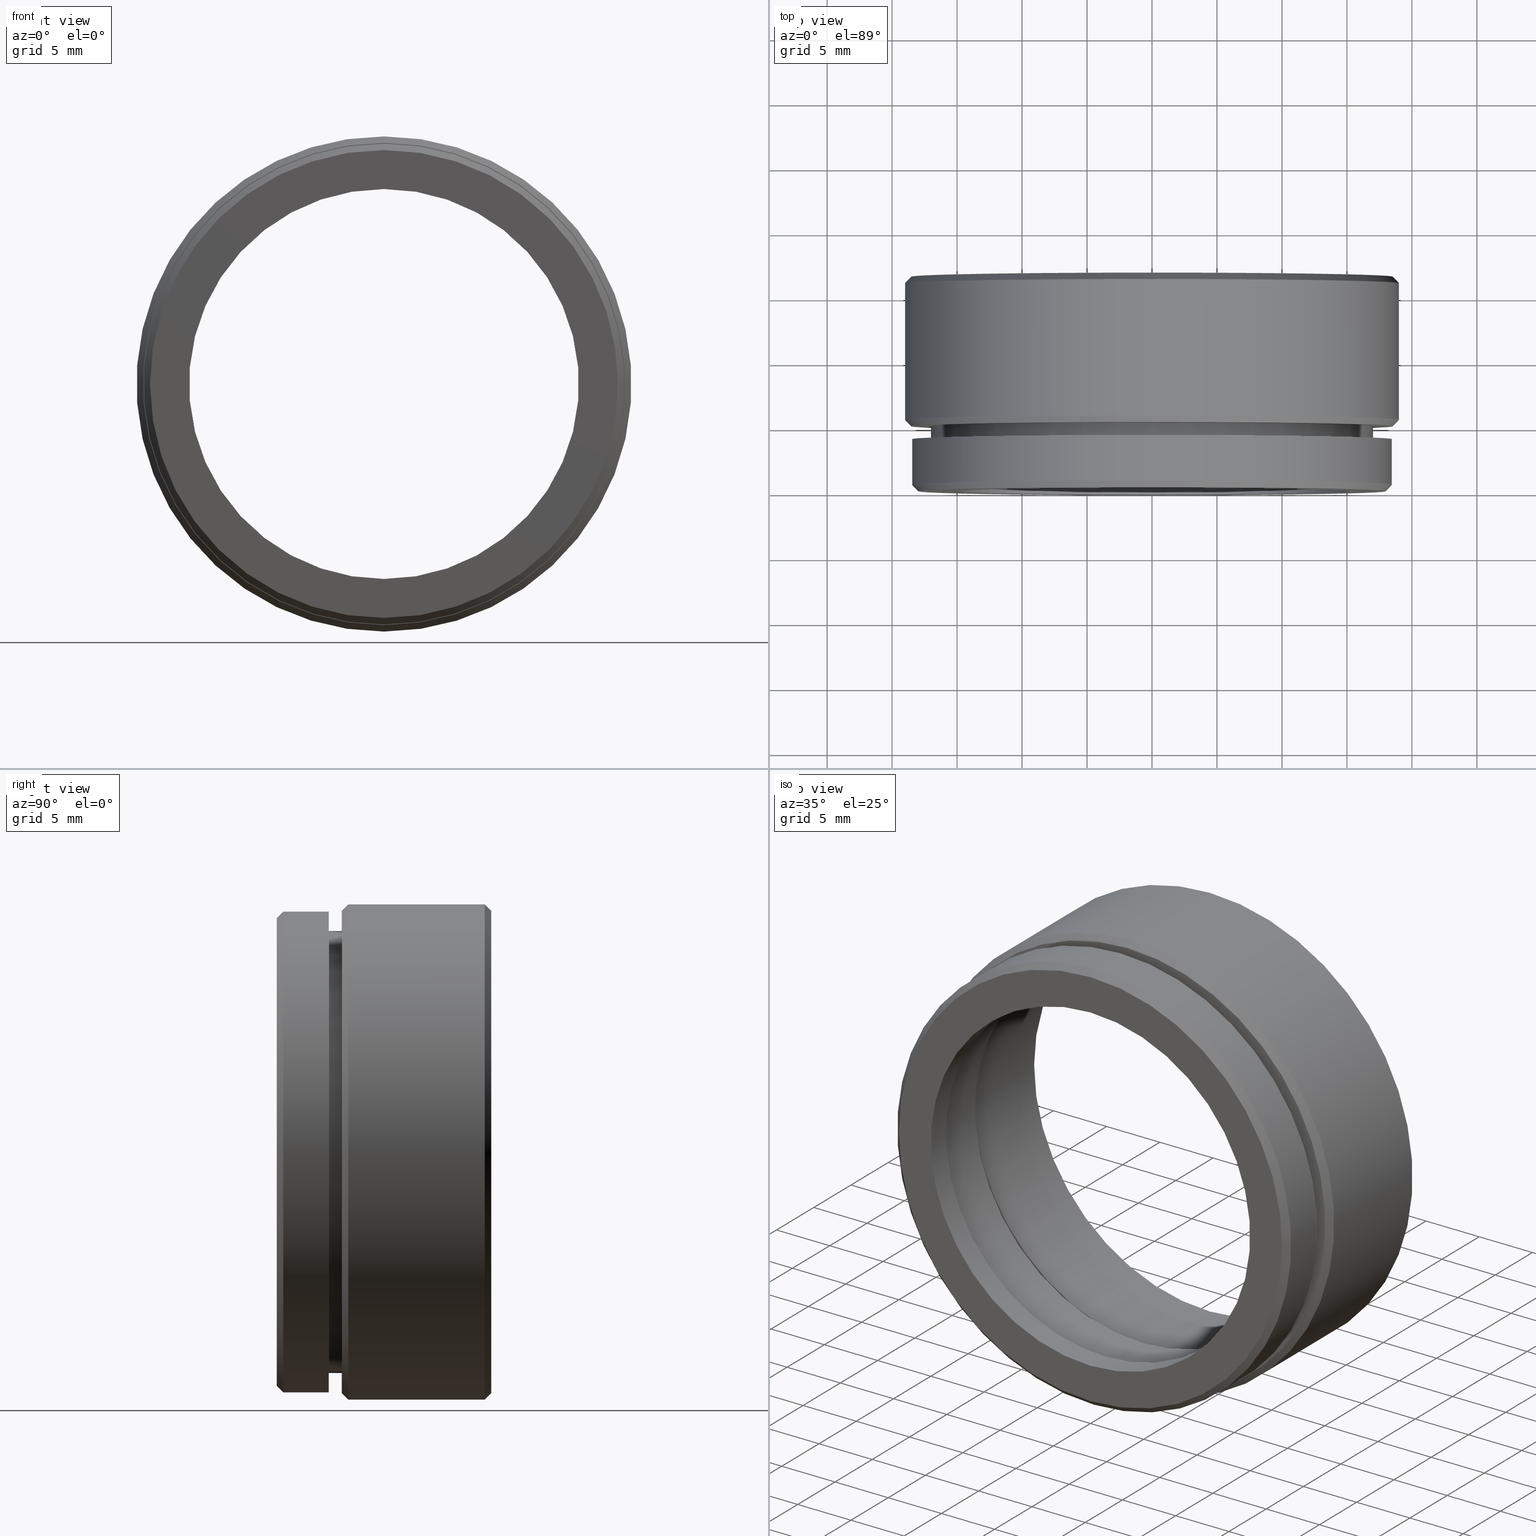
[diagram: canonical four-view strip — front | top / right | iso, engineering-drawing reading convention]
A machine part, canonical four-view strip (front | top / right | iso — engineering-drawing reading convention). The complete STEP part file that produces these views, byte-faithful:
ISO-10303-21;
HEADER;
FILE_DESCRIPTION (( 'STEP AP214' ),
    '1' );
FILE_NAME ('500013.STEP',
    '2019-09-03T06:24:55',
    ( 'user' ),
    ( '΢���й�' ),
    'SwSTEP 2.0',
    'SolidWorks 2016',
    '' );
FILE_SCHEMA (( 'AUTOMOTIVE_DESIGN' ));
ENDSEC;

DATA;
#1 = DIRECTION ( 'NONE',  ( 0.0000000000000000000, 0.0000000000000000000, -1.000000000000000000 ) ) ;
#2 = AXIS2_PLACEMENT_3D ( 'NONE', #361, #482, #515 ) ;
#3 = CARTESIAN_POINT ( 'NONE',  ( 0.0000000000000000000, 2.000000000000000000, 0.0000000000000000000 ) ) ;
#4 =( NAMED_UNIT ( * ) PLANE_ANGLE_UNIT ( ) SI_UNIT ( $, .RADIAN. ) );
#5 = VECTOR ( 'NONE', #545, 1000.000000000000100 ) ;
#6 = PRESENTATION_STYLE_ASSIGNMENT (( #618 ) ) ;
#7 = MECHANICAL_DESIGN_GEOMETRIC_PRESENTATION_REPRESENTATION (  '', ( #773 ), #196 ) ;
#8 = AXIS2_PLACEMENT_3D ( 'NONE', #165, #555, #306 ) ;
#9 = ORIENTED_EDGE ( 'NONE', *, *, #567, .T. ) ;
#10 = DIRECTION ( 'NONE',  ( -0.0000000000000000000, -1.000000000000000000, -0.0000000000000000000 ) ) ;
#11 = EDGE_LOOP ( 'NONE', ( #645, #108, #463, #211 ) ) ;
#12 = PLANE ( 'NONE',  #742 ) ;
#13 = CIRCLE ( 'NONE', #99, 15.75000000000000000 ) ;
#14 = CARTESIAN_POINT ( 'NONE',  ( 15.75000000000000000, 2.000000000000000000, 0.0000000000000000000 ) ) ;
#15 = CIRCLE ( 'NONE', #163, 15.75000000000000400 ) ;
#16 = EDGE_LOOP ( 'NONE', ( #679, #330, #826, #256 ) ) ;
#17 = ORIENTED_EDGE ( 'NONE', *, *, #91, .T. ) ;
#18 = ORIENTED_EDGE ( 'NONE', *, *, #746, .F. ) ;
#19 = DIRECTION ( 'NONE',  ( -0.0000000000000000000, -1.000000000000000000, -0.0000000000000000000 ) ) ;
#20 = EDGE_CURVE ( 'NONE', #55, #244, #460, .T. ) ;
#21 = CARTESIAN_POINT ( 'NONE',  ( 19.04999999999999700, 16.50000000000000000, 0.0000000000000000000 ) ) ;
#22 =( GEOMETRIC_REPRESENTATION_CONTEXT ( 3 ) GLOBAL_UNCERTAINTY_ASSIGNED_CONTEXT ( ( #639 ) ) GLOBAL_UNIT_ASSIGNED_CONTEXT ( ( #606, #549, #548 ) ) REPRESENTATION_CONTEXT ( 'NONE', 'WORKASPACE' ) );
#23 = AXIS2_PLACEMENT_3D ( 'NONE', #252, #173, #201 ) ;
#24 = CARTESIAN_POINT ( 'NONE',  ( 2.081899558550500700E-015, 16.50000000000000000, -17.00000000000000400 ) ) ;
#25 = EDGE_CURVE ( 'NONE', #448, #272, #424, .T. ) ;
#26 = CARTESIAN_POINT ( 'NONE',  ( 0.0000000000000000000, 5.000000000000000000, 0.0000000000000000000 ) ) ;
#27 = ORIENTED_EDGE ( 'NONE', *, *, #309, .F. ) ;
#28 = VERTEX_POINT ( 'NONE', #668 ) ;
#29 = CARTESIAN_POINT ( 'NONE',  ( 0.0000000000000000000, 0.0000000000000000000, 0.0000000000000000000 ) ) ;
#30 = EDGE_LOOP ( 'NONE', ( #88, #17 ) ) ;
#31 = VERTEX_POINT ( 'NONE', #733 ) ;
#32 = EDGE_CURVE ( 'NONE', #601, #513, #253, .T. ) ;
#33 = DIRECTION ( 'NONE',  ( -0.0000000000000000000, -1.000000000000000000, -0.0000000000000000000 ) ) ;
#34 = DIRECTION ( 'NONE',  ( 0.0000000000000000000, 0.0000000000000000000, -1.000000000000000000 ) ) ;
#35 = CARTESIAN_POINT ( 'NONE',  ( 1.836970198721029600E-015, 0.0000000000000000000, 15.00000000000000000 ) ) ;
#36 = ORIENTED_EDGE ( 'NONE', *, *, #167, .T. ) ;
#37 = CARTESIAN_POINT ( 'NONE',  ( 0.0000000000000000000, 2.000000000000000000, 0.0000000000000000000 ) ) ;
#38 = EDGE_CURVE ( 'NONE', #497, #28, #270, .T. ) ;
#39 = FACE_OUTER_BOUND ( 'NONE', #560, .T. ) ;
#40 = DIRECTION ( 'NONE',  ( 0.0000000000000000000, 0.7071067811865500200, 0.7071067811865451300 ) ) ;
#41 = ORIENTED_EDGE ( 'NONE', *, *, #20, .F. ) ;
#42 = ORIENTED_EDGE ( 'NONE', *, *, #731, .F. ) ;
#43 = PRODUCT_DEFINITION ( 'δ֪', '', #759, #796 ) ;
#44 = ORIENTED_EDGE ( 'NONE', *, *, #517, .T. ) ;
#45 = DIRECTION ( 'NONE',  ( -0.0000000000000000000, -1.000000000000000000, -0.0000000000000000000 ) ) ;
#46 = DIRECTION ( 'NONE',  ( -0.0000000000000000000, -1.000000000000000000, -0.0000000000000000000 ) ) ;
#47 = CARTESIAN_POINT ( 'NONE',  ( 0.0000000000000000000, 0.0000000000000000000, 0.0000000000000000000 ) ) ;
#48 = SURFACE_SIDE_STYLE ('',( #426 ) ) ;
#49 = FILL_AREA_STYLE_COLOUR ( '', #106 ) ;
#50 = AXIS2_PLACEMENT_3D ( 'NONE', #613, #585, #607 ) ;
#51 = DIRECTION ( 'NONE',  ( -0.0000000000000000000, -1.000000000000000000, -0.0000000000000000000 ) ) ;
#52 = LINE ( 'NONE', #441, #268 ) ;
#53 = DIRECTION ( 'NONE',  ( -0.0000000000000000000, -1.000000000000000000, -0.0000000000000000000 ) ) ;
#54 = ORIENTED_EDGE ( 'NONE', *, *, #586, .F. ) ;
#55 = VERTEX_POINT ( 'NONE', #656 ) ;
#56 = VERTEX_POINT ( 'NONE', #661 ) ;
#57 = DIRECTION ( 'NONE',  ( 0.0000000000000000000, 1.000000000000000000, 0.0000000000000000000 ) ) ;
#58 = ORIENTED_EDGE ( 'NONE', *, *, #604, .T. ) ;
#59 = STYLED_ITEM ( 'NONE', ( #404 ), #500 ) ;
#60 = DIRECTION ( 'NONE',  ( 0.0000000000000000000, 0.0000000000000000000, -1.000000000000000000 ) ) ;
#61 = EDGE_CURVE ( 'NONE', #570, #694, #15, .T. ) ;
#62 = DIRECTION ( 'NONE',  ( -0.0000000000000000000, -1.000000000000000000, -0.0000000000000000000 ) ) ;
#63 = PRODUCT ( '500013', '500013', '', ( #96 ) ) ;
#64 = ADVANCED_FACE ( 'NONE', ( #65 ), #298, .F. ) ;
#65 = FACE_OUTER_BOUND ( 'NONE', #234, .T. ) ;
#66 = ORIENTED_EDGE ( 'NONE', *, *, #138, .F. ) ;
#67 = DIRECTION ( 'NONE',  ( -0.0000000000000000000, -1.000000000000000000, -0.0000000000000000000 ) ) ;
#68 = VERTEX_POINT ( 'NONE', #757 ) ;
#69 = EDGE_LOOP ( 'NONE', ( #100, #95 ) ) ;
#70 = DIRECTION ( 'NONE',  ( -0.0000000000000000000, -1.000000000000000000, -0.0000000000000000000 ) ) ;
#71 = ADVANCED_FACE ( 'NONE', ( #422 ), #296, .T. ) ;
#72 = CARTESIAN_POINT ( 'NONE',  ( 1.836970198721029600E-015, 0.0000000000000000000, 15.00000000000000000 ) ) ;
#73 = UNCERTAINTY_MEASURE_WITH_UNIT (LENGTH_MEASURE( 1.000000000000000100E-005 ), #622, 'distance_accuracy_value', 'NONE');
#74 = AXIS2_PLACEMENT_3D ( 'NONE', #691, #649, #644 ) ;
#75 = EDGE_CURVE ( 'NONE', #464, #68, #403, .T. ) ;
#76 = DIRECTION ( 'NONE',  ( 0.0000000000000000000, 0.0000000000000000000, 1.000000000000000000 ) ) ;
#77 = LINE ( 'NONE', #238, #359 ) ;
#78 = FACE_OUTER_BOUND ( 'NONE', #339, .T. ) ;
#79 = EDGE_LOOP ( 'NONE', ( #533, #512 ) ) ;
#80 = CYLINDRICAL_SURFACE ( 'NONE', #724, 19.04999999999999700 ) ;
#81 = EDGE_CURVE ( 'NONE', #702, #837, #13, .T. ) ;
#82 = ADVANCED_FACE ( 'NONE', ( #78 ), #285, .T. ) ;
#83 = VERTEX_POINT ( 'NONE', #670 ) ;
#84 = ORIENTED_EDGE ( 'NONE', *, *, #61, .T. ) ;
#85 = CARTESIAN_POINT ( 'NONE',  ( 0.0000000000000000000, 15.99999999999999600, 0.0000000000000000000 ) ) ;
#86 = CARTESIAN_POINT ( 'NONE',  ( 0.0000000000000000000, 0.0000000000000000000, 0.0000000000000000000 ) ) ;
#87 = CIRCLE ( 'NONE', #197, 16.50000000000000000 ) ;
#88 = ORIENTED_EDGE ( 'NONE', *, *, #75, .T. ) ;
#89 = DIRECTION ( 'NONE',  ( -0.0000000000000000000, 1.000000000000000000, -0.0000000000000000000 ) ) ;
#90 = ORIENTED_EDGE ( 'NONE', *, *, #243, .T. ) ;
#91 = EDGE_CURVE ( 'NONE', #68, #464, #634, .T. ) ;
#92 =( GEOMETRIC_REPRESENTATION_CONTEXT ( 3 ) GLOBAL_UNCERTAINTY_ASSIGNED_CONTEXT ( ( #73 ) ) GLOBAL_UNIT_ASSIGNED_CONTEXT ( ( #622, #97, #565 ) ) REPRESENTATION_CONTEXT ( 'NONE', 'WORKASPACE' ) );
#93 = AXIS2_PLACEMENT_3D ( 'NONE', #188, #46, #199 ) ;
#94 = CARTESIAN_POINT ( 'NONE',  ( 15.00000000000000000, 0.0000000000000000000, 0.0000000000000000000 ) ) ;
#95 = ORIENTED_EDGE ( 'NONE', *, *, #586, .T. ) ;
#96 = PRODUCT_CONTEXT ( 'NONE', #531, 'mechanical' ) ;
#97 =( NAMED_UNIT ( * ) PLANE_ANGLE_UNIT ( ) SI_UNIT ( $, .RADIAN. ) );
#98 = VERTEX_POINT ( 'NONE', #857 ) ;
#99 = AXIS2_PLACEMENT_3D ( 'NONE', #264, #327, #872 ) ;
#100 = ORIENTED_EDGE ( 'NONE', *, *, #262, .T. ) ;
#101 =( LENGTH_UNIT ( ) NAMED_UNIT ( * ) SI_UNIT ( .MILLI., .METRE. ) );
#102 = PRESENTATION_LAYER_ASSIGNMENT (  '', '', ( #625 ) ) ;
#103 = EDGE_CURVE ( 'NONE', #221, #56, #231, .T. ) ;
#104 = CIRCLE ( 'NONE', #317, 15.75000000000000000 ) ;
#105 = FACE_OUTER_BOUND ( 'NONE', #331, .T. ) ;
#106 = COLOUR_RGB ( '',1.000000000000000000, 1.000000000000000000, 1.000000000000000000 ) ;
#107 =( GEOMETRIC_REPRESENTATION_CONTEXT ( 3 ) GLOBAL_UNCERTAINTY_ASSIGNED_CONTEXT ( ( #623 ) ) GLOBAL_UNIT_ASSIGNED_CONTEXT ( ( #208, #471, #501 ) ) REPRESENTATION_CONTEXT ( 'NONE', 'WORKASPACE' ) );
#108 = ORIENTED_EDGE ( 'NONE', *, *, #103, .T. ) ;
#109 = PRESENTATION_STYLE_ASSIGNMENT (( #476 ) ) ;
#110 = ORIENTED_EDGE ( 'NONE', *, *, #81, .F. ) ;
#111 = ORIENTED_EDGE ( 'NONE', *, *, #666, .F. ) ;
#112 = FILL_AREA_STYLE ('',( #115 ) ) ;
#113 = DIRECTION ( 'NONE',  ( 0.0000000000000000000, 0.0000000000000000000, -1.000000000000000000 ) ) ;
#114 = AXIS2_PLACEMENT_3D ( 'NONE', #764, #762, #767 ) ;
#115 = FILL_AREA_STYLE_COLOUR ( '', #401 ) ;
#116 = COLOUR_RGB ( '',1.000000000000000000, 1.000000000000000000, 1.000000000000000000 ) ;
#117 = CARTESIAN_POINT ( 'NONE',  ( 0.0000000000000000000, 0.0000000000000000000, -17.60000000000000100 ) ) ;
#118 = CARTESIAN_POINT ( 'NONE',  ( 0.0000000000000000000, 0.0000000000000000000, -15.00000000000000000 ) ) ;
#119 = EDGE_CURVE ( 'NONE', #31, #615, #399, .T. ) ;
#120 = CARTESIAN_POINT ( 'NONE',  ( 1.928818708657081700E-015, 7.000000000000000000, 15.75000000000000400 ) ) ;
#121 =( NAMED_UNIT ( * ) PLANE_ANGLE_UNIT ( ) SI_UNIT ( $, .RADIAN. ) );
#122 = AXIS2_PLACEMENT_3D ( 'NONE', #593, #525, #489 ) ;
#123 = ORIENTED_EDGE ( 'NONE', *, *, #344, .F. ) ;
#124 = AXIS2_PLACEMENT_3D ( 'NONE', #258, #319, #318 ) ;
#125 = CARTESIAN_POINT ( 'NONE',  ( 2.155378366499341600E-015, 8.000000000000000000, 17.60000000000000100 ) ) ;
#126 = EDGE_CURVE ( 'NONE', #31, #156, #230, .T. ) ;
#127 = AXIS2_PLACEMENT_3D ( 'NONE', #564, #602, #819 ) ;
#128 = COLOUR_RGB ( '',1.000000000000000000, 1.000000000000000000, 1.000000000000000000 ) ;
#129 = CYLINDRICAL_SURFACE ( 'NONE', #760, 18.50000000000000400 ) ;
#130 = FACE_BOUND ( 'NONE', #315, .T. ) ;
#131 = VECTOR ( 'NONE', #40, 1000.000000000000100 ) ;
#132 = DIRECTION ( 'NONE',  ( -0.0000000000000000000, -1.000000000000000000, -0.0000000000000000000 ) ) ;
#133 = ORIENTED_EDGE ( 'NONE', *, *, #738, .F. ) ;
#134 = CIRCLE ( 'NONE', #122, 17.00000000000000000 ) ;
#135 = ADVANCED_FACE ( 'NONE', ( #39 ), #551, .F. ) ;
#136 = DIRECTION ( 'NONE',  ( 0.0000000000000000000, 0.0000000000000000000, 1.000000000000000000 ) ) ;
#137 = DIRECTION ( 'NONE',  ( -0.0000000000000000000, -1.000000000000000000, -0.0000000000000000000 ) ) ;
#138 = EDGE_CURVE ( 'NONE', #68, #873, #556, .T. ) ;
#139 = UNCERTAINTY_MEASURE_WITH_UNIT (LENGTH_MEASURE( 1.000000000000000100E-005 ), #617, 'distance_accuracy_value', 'NONE');
#140 = ADVANCED_FACE ( 'NONE', ( #281, #378 ), #851, .T. ) ;
#141 = AXIS2_PLACEMENT_3D ( 'NONE', #3, #10, #450 ) ;
#142 = ORIENTED_EDGE ( 'NONE', *, *, #449, .F. ) ;
#143 = ORIENTED_EDGE ( 'NONE', *, *, #364, .T. ) ;
#144 = FILL_AREA_STYLE_COLOUR ( '', #128 ) ;
#145 = AXIS2_PLACEMENT_3D ( 'NONE', #832, #791, #828 ) ;
#146 =( LENGTH_UNIT ( ) NAMED_UNIT ( * ) SI_UNIT ( .MILLI., .METRE. ) );
#147 = SURFACE_SIDE_STYLE ('',( #589 ) ) ;
#148 = ADVANCED_FACE ( 'NONE', ( #241 ), #532, .T. ) ;
#149 = PRESENTATION_STYLE_ASSIGNMENT (( #160 ) ) ;
#150 = AXIS2_PLACEMENT_3D ( 'NONE', #454, #406, #407 ) ;
#151 = FACE_BOUND ( 'NONE', #69, .T. ) ;
#152 = CIRCLE ( 'NONE', #643, 17.00000000000000000 ) ;
#153 = EDGE_LOOP ( 'NONE', ( #869, #536, #595, #614 ) ) ;
#154 = EDGE_CURVE ( 'NONE', #28, #497, #358, .T. ) ;
#155 = CARTESIAN_POINT ( 'NONE',  ( 0.0000000000000000000, 0.5000000000000038900, 0.0000000000000000000 ) ) ;
#156 = VERTEX_POINT ( 'NONE', #473 ) ;
#157 = MECHANICAL_DESIGN_GEOMETRIC_PRESENTATION_REPRESENTATION (  '', ( #353 ), #107 ) ;
#158 = DIRECTION ( 'NONE',  ( 0.0000000000000000000, 1.000000000000000000, 0.0000000000000000000 ) ) ;
#159 = DIRECTION ( 'NONE',  ( 0.0000000000000000000, 0.0000000000000000000, -1.000000000000000000 ) ) ;
#160 = SURFACE_STYLE_USAGE ( .BOTH. , #48 ) ;
#161 = CARTESIAN_POINT ( 'NONE',  ( 0.0000000000000000000, 0.0000000000000000000, 0.0000000000000000000 ) ) ;
#162 = DIRECTION ( 'NONE',  ( 0.0000000000000000000, -0.0000000000000000000, 1.000000000000000000 ) ) ;
#163 = AXIS2_PLACEMENT_3D ( 'NONE', #516, #774, #492 ) ;
#164 = COLOUR_RGB ( '',1.000000000000000000, 1.000000000000000000, 1.000000000000000000 ) ;
#165 = CARTESIAN_POINT ( 'NONE',  ( 0.0000000000000000000, 4.000000000000000900, 0.0000000000000000000 ) ) ;
#166 = ORIENTED_EDGE ( 'NONE', *, *, #552, .T. ) ;
#167 = EDGE_CURVE ( 'NONE', #615, #271, #219, .T. ) ;
#168 = ORIENTED_EDGE ( 'NONE', *, *, #547, .F. ) ;
#169 = AXIS2_PLACEMENT_3D ( 'NONE', #21, #299, #506 ) ;
#170 = AXIS2_PLACEMENT_3D ( 'NONE', #37, #45, #113 ) ;
#171 = CARTESIAN_POINT ( 'NONE',  ( 0.0000000000000000000, 0.0000000000000000000, 0.0000000000000000000 ) ) ;
#172 = FACE_OUTER_BOUND ( 'NONE', #177, .T. ) ;
#173 = DIRECTION ( 'NONE',  ( -0.0000000000000000000, -1.000000000000000000, -0.0000000000000000000 ) ) ;
#174 = VECTOR ( 'NONE', #410, 1000.000000000000000 ) ;
#175 = ORIENTED_EDGE ( 'NONE', *, *, #537, .F. ) ;
#176 = AXIS2_PLACEMENT_3D ( 'NONE', #864, #652, #600 ) ;
#177 = EDGE_LOOP ( 'NONE', ( #287, #472, #495, #465 ) ) ;
#178 = EDGE_LOOP ( 'NONE', ( #487, #198, #445, #717 ) ) ;
#179 = DIRECTION ( 'NONE',  ( 0.0000000000000000000, 0.0000000000000000000, -1.000000000000000000 ) ) ;
#180 = VECTOR ( 'NONE', #475, 1000.000000000000000 ) ;
#181 = FILL_AREA_STYLE ('',( #216 ) ) ;
#182 = ORIENTED_EDGE ( 'NONE', *, *, #38, .F. ) ;
#183 = AXIS2_PLACEMENT_3D ( 'NONE', #171, #33, #34 ) ;
#184 = ORIENTED_EDGE ( 'NONE', *, *, #567, .F. ) ;
#185 = PLANE ( 'NONE',  #348 ) ;
#186 = ORIENTED_EDGE ( 'NONE', *, *, #154, .F. ) ;
#187 = ORIENTED_EDGE ( 'NONE', *, *, #344, .T. ) ;
#188 = CARTESIAN_POINT ( 'NONE',  ( 0.0000000000000000000, 8.000000000000000000, 0.0000000000000000000 ) ) ;
#189 = AXIS2_PLACEMENT_3D ( 'NONE', #684, #658, #674 ) ;
#190 = CIRCLE ( 'NONE', #755, 18.50000000000000400 ) ;
#191 = FACE_OUTER_BOUND ( 'NONE', #451, .T. ) ;
#192 = SURFACE_STYLE_USAGE ( .BOTH. , #147 ) ;
#193 = EDGE_LOOP ( 'NONE', ( #207, #267, #142, #273 ) ) ;
#194 = ORIENTED_EDGE ( 'NONE', *, *, #746, .T. ) ;
#195 = CIRCLE ( 'NONE', #170, 15.00000000000000000 ) ;
#196 =( GEOMETRIC_REPRESENTATION_CONTEXT ( 3 ) GLOBAL_UNCERTAINTY_ASSIGNED_CONTEXT ( ( #202 ) ) GLOBAL_UNIT_ASSIGNED_CONTEXT ( ( #101, #729, #400 ) ) REPRESENTATION_CONTEXT ( 'NONE', 'WORKASPACE' ) );
#197 = AXIS2_PLACEMENT_3D ( 'NONE', #85, #89, #76 ) ;
#198 = ORIENTED_EDGE ( 'NONE', *, *, #138, .T. ) ;
#199 = DIRECTION ( 'NONE',  ( 0.0000000000000000000, 0.0000000000000000000, -1.000000000000000000 ) ) ;
#200 = PRESENTATION_LAYER_ASSIGNMENT (  '', '', ( #353 ) ) ;
#201 = DIRECTION ( 'NONE',  ( 0.0000000000000000000, 0.0000000000000000000, 1.000000000000000000 ) ) ;
#202 = UNCERTAINTY_MEASURE_WITH_UNIT (LENGTH_MEASURE( 1.000000000000000100E-005 ), #101, 'distance_accuracy_value', 'NONE');
#203 = CARTESIAN_POINT ( 'NONE',  ( 0.0000000000000000000, 2.000000000000000000, -15.75000000000000000 ) ) ;
#204 = CYLINDRICAL_SURFACE ( 'NONE', #853, 18.50000000000000400 ) ;
#205 = PLANE ( 'NONE',  #169 ) ;
#206 = SURFACE_STYLE_FILL_AREA ( #398 ) ;
#207 = ORIENTED_EDGE ( 'NONE', *, *, #119, .F. ) ;
#208 =( LENGTH_UNIT ( ) NAMED_UNIT ( * ) SI_UNIT ( .MILLI., .METRE. ) );
#209 = EDGE_LOOP ( 'NONE', ( #432, #433, #754, #194 ) ) ;
#210 = CARTESIAN_POINT ( 'NONE',  ( 0.0000000000000000000, 4.000000000000000900, 0.0000000000000000000 ) ) ;
#211 = ORIENTED_EDGE ( 'NONE', *, *, #325, .F. ) ;
#212 = AXIS2_PLACEMENT_3D ( 'NONE', #662, #688, #686 ) ;
#213 = ADVANCED_FACE ( 'NONE', ( #172 ), #627, .F. ) ;
#214 = CARTESIAN_POINT ( 'NONE',  ( 2.020667218593133100E-015, 15.99999999999999600, 16.50000000000000000 ) ) ;
#215 = ADVANCED_FACE ( 'NONE', ( #633 ), #129, .T. ) ;
#216 = FILL_AREA_STYLE_COLOUR ( '', #116 ) ;
#217 = AXIS2_PLACEMENT_3D ( 'NONE', #599, #457, #587 ) ;
#218 = FACE_OUTER_BOUND ( 'NONE', #30, .T. ) ;
#219 = LINE ( 'NONE', #514, #180 ) ;
#220 = EDGE_LOOP ( 'NONE', ( #526, #505, #477, #362 ) ) ;
#221 = VERTEX_POINT ( 'NONE', #802 ) ;
#222 = EDGE_LOOP ( 'NONE', ( #521, #581 ) ) ;
#223 = DIRECTION ( 'NONE',  ( 0.0000000000000000000, 1.000000000000000000, 0.0000000000000000000 ) ) ;
#224 = ORIENTED_EDGE ( 'NONE', *, *, #25, .F. ) ;
#225 = DIRECTION ( 'NONE',  ( 0.0000000000000000000, 0.0000000000000000000, -1.000000000000000000 ) ) ;
#226 = AXIS2_PLACEMENT_3D ( 'NONE', #709, #57, #778 ) ;
#227 = CARTESIAN_POINT ( 'NONE',  ( 2.332952152375707300E-015, 5.500000000000014200, 19.04999999999999700 ) ) ;
#228 = PRESENTATION_STYLE_ASSIGNMENT (( #368 ) ) ;
#229 = CARTESIAN_POINT ( 'NONE',  ( 0.0000000000000000000, 16.00000000000000400, 0.0000000000000000000 ) ) ;
#230 = LINE ( 'NONE', #620, #388 ) ;
#231 = LINE ( 'NONE', #855, #300 ) ;
#232 = EDGE_LOOP ( 'NONE', ( #110, #383 ) ) ;
#233 = DIRECTION ( 'NONE',  ( 0.0000000000000000000, 0.7071067811865474600, 0.7071067811865474600 ) ) ;
#234 = EDGE_LOOP ( 'NONE', ( #123, #224, #583, #816 ) ) ;
#235 = ORIENTED_EDGE ( 'NONE', *, *, #20, .T. ) ;
#236 = CARTESIAN_POINT ( 'NONE',  ( 0.0000000000000000000, 5.000000000000000000, 18.54999999999999000 ) ) ;
#237 = MECHANICAL_DESIGN_GEOMETRIC_PRESENTATION_REPRESENTATION (  '', ( #625 ), #799 ) ;
#238 = CARTESIAN_POINT ( 'NONE',  ( 0.0000000000000000000, 16.50000000000000000, 17.00000000000000400 ) ) ;
#239 = CARTESIAN_POINT ( 'NONE',  ( 0.0000000000000000000, 16.50000000000000000, 0.0000000000000000000 ) ) ;
#240 = DIRECTION ( 'NONE',  ( 0.0000000000000000000, 0.0000000000000000000, -1.000000000000000000 ) ) ;
#241 = FACE_OUTER_BOUND ( 'NONE', #381, .T. ) ;
#242 = DIRECTION ( 'NONE',  ( 0.0000000000000000000, 1.000000000000000000, 0.0000000000000000000 ) ) ;
#243 = EDGE_CURVE ( 'NONE', #98, #601, #483, .T. ) ;
#244 = VERTEX_POINT ( 'NONE', #329 ) ;
#245 = EDGE_LOOP ( 'NONE', ( #420, #44 ) ) ;
#246 = EDGE_LOOP ( 'NONE', ( #182, #186 ) ) ;
#247 = CARTESIAN_POINT ( 'NONE',  ( 1.928818708657081300E-015, 0.0000000000000000000, 15.75000000000000000 ) ) ;
#248 = VERTEX_POINT ( 'NONE', #431 ) ;
#249 = DIRECTION ( 'NONE',  ( -0.0000000000000000000, -1.000000000000000000, -0.0000000000000000000 ) ) ;
#250 = AXIS2_PLACEMENT_3D ( 'NONE', #155, #158, #159 ) ;
#251 = CARTESIAN_POINT ( 'NONE',  ( 0.0000000000000000000, 15.99999999999999600, -16.50000000000000000 ) ) ;
#252 = CARTESIAN_POINT ( 'NONE',  ( 0.0000000000000000000, 16.50000000000000000, 0.0000000000000000000 ) ) ;
#253 = LINE ( 'NONE', #323, #444 ) ;
#254 = DIRECTION ( 'NONE',  ( -0.0000000000000000000, -1.000000000000000000, -0.0000000000000000000 ) ) ;
#255 = EDGE_LOOP ( 'NONE', ( #184, #705, #669, #739 ) ) ;
#256 = ORIENTED_EDGE ( 'NONE', *, *, #552, .F. ) ;
#257 = CARTESIAN_POINT ( 'NONE',  ( 0.0000000000000000000, 0.0000000000000000000, 0.0000000000000000000 ) ) ;
#258 = CARTESIAN_POINT ( 'NONE',  ( 0.0000000000000000000, 0.0000000000000000000, 0.0000000000000000000 ) ) ;
#259 = DIRECTION ( 'NONE',  ( -0.0000000000000000000, -1.000000000000000000, -0.0000000000000000000 ) ) ;
#260 = DIRECTION ( 'NONE',  ( 0.0000000000000000000, 0.0000000000000000000, -1.000000000000000000 ) ) ;
#261 = ADVANCED_FACE ( 'NONE', ( #582 ), #278, .F. ) ;
#262 = EDGE_CURVE ( 'NONE', #83, #554, #324, .T. ) ;
#263 = DIRECTION ( 'NONE',  ( 0.0000000000000000000, -1.000000000000000000, -0.0000000000000000000 ) ) ;
#264 = CARTESIAN_POINT ( 'NONE',  ( 0.0000000000000000000, 2.000000000000000000, 0.0000000000000000000 ) ) ;
#265 = ADVANCED_FACE ( 'NONE', ( #578 ), #611, .T. ) ;
#266 = DIRECTION ( 'NONE',  ( 0.0000000000000000000, 0.0000000000000000000, -1.000000000000000000 ) ) ;
#267 = ORIENTED_EDGE ( 'NONE', *, *, #126, .T. ) ;
#268 = VECTOR ( 'NONE', #67, 1000.000000000000000 ) ;
#269 = AXIS2_PLACEMENT_3D ( 'NONE', #161, #259, #260 ) ;
#270 = CIRCLE ( 'NONE', #275, 17.60000000000000100 ) ;
#271 = VERTEX_POINT ( 'NONE', #227 ) ;
#272 = VERTEX_POINT ( 'NONE', #125 ) ;
#273 = ORIENTED_EDGE ( 'NONE', *, *, #167, .F. ) ;
#274 =( NAMED_UNIT ( * ) PLANE_ANGLE_UNIT ( ) SI_UNIT ( $, .RADIAN. ) );
#275 = AXIS2_PLACEMENT_3D ( 'NONE', #672, #734, #695 ) ;
#276 =( NAMED_UNIT ( * ) SI_UNIT ( $, .STERADIAN. ) SOLID_ANGLE_UNIT ( ) );
#277 = ADVANCED_FACE ( 'NONE', ( #326, #621 ), #185, .T. ) ;
#278 = CYLINDRICAL_SURFACE ( 'NONE', #124, 15.75000000000000000 ) ;
#279 = MANIFOLD_SOLID_BREP ( '����1', #343 ) ;
#280 = COLOUR_RGB ( '',1.000000000000000000, 1.000000000000000000, 1.000000000000000000 ) ;
#281 = FACE_OUTER_BOUND ( 'NONE', #418, .T. ) ;
#282 = DIRECTION ( 'NONE',  ( 0.0000000000000000000, 0.0000000000000000000, 1.000000000000000000 ) ) ;
#283 = EDGE_LOOP ( 'NONE', ( #41, #168 ) ) ;
#284 = ADVANCED_FACE ( 'NONE', ( #519 ), #423, .T. ) ;
#285 = CONICAL_SURFACE ( 'NONE', #176, 18.54999999999999000, 0.7853981633974415100 ) ;
#286 = DIRECTION ( 'NONE',  ( -0.0000000000000000000, -1.000000000000000000, -0.0000000000000000000 ) ) ;
#287 = ORIENTED_EDGE ( 'NONE', *, *, #635, .F. ) ;
#288 = ORIENTED_EDGE ( 'NONE', *, *, #103, .F. ) ;
#289 = SURFACE_SIDE_STYLE ('',( #206 ) ) ;
#290 = VERTEX_POINT ( 'NONE', #214 ) ;
#291 = ORIENTED_EDGE ( 'NONE', *, *, #292, .F. ) ;
#292 = EDGE_CURVE ( 'NONE', #448, #497, #628, .T. ) ;
#293 = ADVANCED_FACE ( 'NONE', ( #442 ), #308, .F. ) ;
#294 = DIRECTION ( 'NONE',  ( -0.0000000000000000000, -1.000000000000000000, -0.0000000000000000000 ) ) ;
#295 = AXIS2_PLACEMENT_3D ( 'NONE', #26, #53, #60 ) ;
#296 = CONICAL_SURFACE ( 'NONE', #226, 18.00000000000000400, 0.7853981633974447300 ) ;
#297 = CIRCLE ( 'NONE', #590, 18.00000000000000400 ) ;
#298 = CYLINDRICAL_SURFACE ( 'NONE', #114, 17.60000000000000100 ) ;
#299 = DIRECTION ( 'NONE',  ( 0.0000000000000000000, 1.000000000000000000, 0.0000000000000000000 ) ) ;
#300 = VECTOR ( 'NONE', #640, 1000.000000000000100 ) ;
#301 = ORIENTED_EDGE ( 'NONE', *, *, #648, .F. ) ;
#302 = CIRCLE ( 'NONE', #693, 17.00000000000000400 ) ;
#303 = VERTEX_POINT ( 'NONE', #863 ) ;
#304 = AXIS2_PLACEMENT_3D ( 'NONE', #229, #305, #626 ) ;
#305 = DIRECTION ( 'NONE',  ( -0.0000000000000000000, -1.000000000000000000, -0.0000000000000000000 ) ) ;
#306 = DIRECTION ( 'NONE',  ( 0.0000000000000000000, 0.0000000000000000000, -1.000000000000000000 ) ) ;
#307 = DIRECTION ( 'NONE',  ( 1.000000000000000000, 0.0000000000000000000, 0.0000000000000000000 ) ) ;
#308 = CYLINDRICAL_SURFACE ( 'NONE', #592, 16.50000000000000000 ) ;
#309 = EDGE_CURVE ( 'NONE', #569, #554, #543, .T. ) ;
#310 = ORIENTED_EDGE ( 'NONE', *, *, #421, .F. ) ;
#311 = ORIENTED_EDGE ( 'NONE', *, *, #387, .T. ) ;
#312 = CIRCLE ( 'NONE', #269, 15.00000000000000000 ) ;
#313 = DIRECTION ( 'NONE',  ( -0.0000000000000000000, -1.000000000000000000, -0.0000000000000000000 ) ) ;
#314 = ORIENTED_EDGE ( 'NONE', *, *, #449, .T. ) ;
#315 = EDGE_LOOP ( 'NONE', ( #18, #874 ) ) ;
#316 = ORIENTED_EDGE ( 'NONE', *, *, #845, .T. ) ;
#317 = AXIS2_PLACEMENT_3D ( 'NONE', #436, #437, #419 ) ;
#318 = DIRECTION ( 'NONE',  ( 0.0000000000000000000, 0.0000000000000000000, -1.000000000000000000 ) ) ;
#319 = DIRECTION ( 'NONE',  ( -0.0000000000000000000, -1.000000000000000000, -0.0000000000000000000 ) ) ;
#320 = DIRECTION ( 'NONE',  ( 0.0000000000000000000, -0.7071067811865474600, -0.7071067811865474600 ) ) ;
#321 = DIRECTION ( 'NONE',  ( 0.0000000000000000000, 0.0000000000000000000, 1.000000000000000000 ) ) ;
#322 = CARTESIAN_POINT ( 'NONE',  ( 0.0000000000000000000, 8.000000000000000000, -17.60000000000000100 ) ) ;
#323 = CARTESIAN_POINT ( 'NONE',  ( 2.265596578422603800E-015, 0.0000000000000000000, 18.50000000000000400 ) ) ;
#324 = CIRCLE ( 'NONE', #23, 17.00000000000000400 ) ;
#325 = EDGE_CURVE ( 'NONE', #303, #513, #499, .T. ) ;
#326 = FACE_BOUND ( 'NONE', #777, .T. ) ;
#327 = DIRECTION ( 'NONE',  ( -0.0000000000000000000, -1.000000000000000000, -0.0000000000000000000 ) ) ;
#328 = ORIENTED_EDGE ( 'NONE', *, *, #862, .F. ) ;
#329 = CARTESIAN_POINT ( 'NONE',  ( 2.020667218593133100E-015, 8.000000000000001800, 16.50000000000000000 ) ) ;
#330 = ORIENTED_EDGE ( 'NONE', *, *, #537, .T. ) ;
#331 = EDGE_LOOP ( 'NONE', ( #90, #703, #340, #301 ) ) ;
#332 = DIRECTION ( 'NONE',  ( -0.0000000000000000000, -1.000000000000000000, -0.0000000000000000000 ) ) ;
#333 = CARTESIAN_POINT ( 'NONE',  ( 0.0000000000000000000, 0.0000000000000000000, 0.0000000000000000000 ) ) ;
#334 = CARTESIAN_POINT ( 'NONE',  ( 0.0000000000000000000, 0.0000000000000000000, 0.0000000000000000000 ) ) ;
#335 = AXIS2_PLACEMENT_3D ( 'NONE', #458, #655, #720 ) ;
#336 = DIRECTION ( 'NONE',  ( -0.0000000000000000000, -1.000000000000000000, -0.0000000000000000000 ) ) ;
#337 = CARTESIAN_POINT ( 'NONE',  ( 0.0000000000000000000, 4.000000000000000000, 0.0000000000000000000 ) ) ;
#338 = ORIENTED_EDGE ( 'NONE', *, *, #805, .F. ) ;
#339 = EDGE_LOOP ( 'NONE', ( #379, #408, #36, #328 ) ) ;
#340 = ORIENTED_EDGE ( 'NONE', *, *, #494, .T. ) ;
#341 = CARTESIAN_POINT ( 'NONE',  ( 17.00000000000000000, 5.000000000000000000, 0.0000000000000000000 ) ) ;
#342 = ADVANCED_FACE ( 'NONE', ( #806, #485 ), #852, .T. ) ;
#343 = CLOSED_SHELL ( 'NONE', ( #265, #550, #360, #135, #261, #558, #293, #563, #430, #787, #213, #366, #761, #215, #277, #481, #491, #284, #811, #847, #140, #64, #659, #428, #342, #354, #148, #82, #71 ) ) ;
#344 = EDGE_CURVE ( 'NONE', #272, #28, #470, .T. ) ;
#345 = LINE ( 'NONE', #72, #174 ) ;
#346 = PLANE ( 'NONE',  #608 ) ;
#347 = VECTOR ( 'NONE', #137, 1000.000000000000000 ) ;
#348 = AXIS2_PLACEMENT_3D ( 'NONE', #712, #223, #162 ) ;
#349 = VERTEX_POINT ( 'NONE', #839 ) ;
#350 = EDGE_LOOP ( 'NONE', ( #111, #187, #603, #291 ) ) ;
#351 = EDGE_LOOP ( 'NONE', ( #27, #42, #58, #54 ) ) ;
#352 = CARTESIAN_POINT ( 'NONE',  ( 0.0000000000000000000, 16.00000000000000400, -19.04999999999999700 ) ) ;
#353 = STYLED_ITEM ( 'NONE', ( #109 ), #787 ) ;
#354 = ADVANCED_FACE ( 'NONE', ( #790 ), #865, .F. ) ;
#355 = CARTESIAN_POINT ( 'NONE',  ( 0.0000000000000000000, 15.99999999999999600, 0.0000000000000000000 ) ) ;
#356 = CARTESIAN_POINT ( 'NONE',  ( 0.0000000000000000000, 16.50000000000000000, -18.55000000000000100 ) ) ;
#357 = CARTESIAN_POINT ( 'NONE',  ( 0.0000000000000000000, 5.500000000000014200, 0.0000000000000000000 ) ) ;
#358 = CIRCLE ( 'NONE', #775, 17.60000000000000100 ) ;
#359 = VECTOR ( 'NONE', #233, 1000.000000000000100 ) ;
#360 = ADVANCED_FACE ( 'NONE', ( #868 ), #673, .T. ) ;
#361 = CARTESIAN_POINT ( 'NONE',  ( 0.0000000000000000000, 16.00000000000000400, 0.0000000000000000000 ) ) ;
#362 = ORIENTED_EDGE ( 'NONE', *, *, #373, .F. ) ;
#363 = DIRECTION ( 'NONE',  ( 0.0000000000000000000, 1.000000000000000000, 0.0000000000000000000 ) ) ;
#364 = EDGE_CURVE ( 'NONE', #694, #570, #725, .T. ) ;
#365 = VERTEX_POINT ( 'NONE', #809 ) ;
#366 = ADVANCED_FACE ( 'NONE', ( #860 ), #690, .F. ) ;
#367 = DIRECTION ( 'NONE',  ( 0.0000000000000000000, 0.0000000000000000000, -1.000000000000000000 ) ) ;
#368 = SURFACE_STYLE_USAGE ( .BOTH. , #289 ) ;
#369 = CARTESIAN_POINT ( 'NONE',  ( 0.0000000000000000000, 4.000000000000000000, -17.00000000000000000 ) ) ;
#370 = STYLED_ITEM ( 'NONE', ( #580 ), #279 ) ;
#371 = CARTESIAN_POINT ( 'NONE',  ( 2.020667218593133100E-015, 0.0000000000000000000, 16.50000000000000000 ) ) ;
#372 = ORIENTED_EDGE ( 'NONE', *, *, #309, .T. ) ;
#373 = EDGE_CURVE ( 'NONE', #486, #455, #859, .T. ) ;
#374 = CARTESIAN_POINT ( 'NONE',  ( 0.0000000000000000000, 0.0000000000000000000, 0.0000000000000000000 ) ) ;
#375 = CARTESIAN_POINT ( 'NONE',  ( 0.0000000000000000000, 5.000000000000000000, 0.0000000000000000000 ) ) ;
#376 = DIRECTION ( 'NONE',  ( -0.0000000000000000000, -1.000000000000000000, -0.0000000000000000000 ) ) ;
#377 = DIRECTION ( 'NONE',  ( 0.0000000000000000000, 0.0000000000000000000, -1.000000000000000000 ) ) ;
#378 = FACE_BOUND ( 'NONE', #283, .T. ) ;
#379 = ORIENTED_EDGE ( 'NONE', *, *, #126, .F. ) ;
#380 = DIRECTION ( 'NONE',  ( 0.0000000000000000000, 1.000000000000000000, 0.0000000000000000000 ) ) ;
#381 = EDGE_LOOP ( 'NONE', ( #66, #474, #715, #338 ) ) ;
#382 = MECHANICAL_DESIGN_GEOMETRIC_PRESENTATION_REPRESENTATION (  '', ( #370 ), #429 ) ;
#383 = ORIENTED_EDGE ( 'NONE', *, *, #616, .F. ) ;
#384 = DIRECTION ( 'NONE',  ( 0.0000000000000000000, 0.0000000000000000000, -1.000000000000000000 ) ) ;
#385 = CARTESIAN_POINT ( 'NONE',  ( 2.081899558550500300E-015, 5.000000000000000000, 17.00000000000000000 ) ) ;
#386 =( NAMED_UNIT ( * ) SI_UNIT ( $, .STERADIAN. ) SOLID_ANGLE_UNIT ( ) );
#387 = EDGE_CURVE ( 'NONE', #873, #271, #870, .T. ) ;
#388 = VECTOR ( 'NONE', #596, 1000.000000000000000 ) ;
#389 = CARTESIAN_POINT ( 'NONE',  ( 0.0000000000000000000, 5.000000000000000000, -17.00000000000000000 ) ) ;
#390 = CARTESIAN_POINT ( 'NONE',  ( 0.0000000000000000000, 7.000000000000000000, -15.75000000000000400 ) ) ;
#391 = FACE_BOUND ( 'NONE', #823, .T. ) ;
#392 = ORIENTED_EDGE ( 'NONE', *, *, #604, .F. ) ;
#393 = STYLED_ITEM ( 'NONE', ( #149 ), #293 ) ;
#394 = CARTESIAN_POINT ( 'NONE',  ( 0.0000000000000000000, 0.0000000000000000000, 0.0000000000000000000 ) ) ;
#395 = DIRECTION ( 'NONE',  ( -0.0000000000000000000, -1.000000000000000000, -0.0000000000000000000 ) ) ;
#396 = DIRECTION ( 'NONE',  ( 0.0000000000000000000, 0.0000000000000000000, -1.000000000000000000 ) ) ;
#397 = CARTESIAN_POINT ( 'NONE',  ( 2.081899558550500700E-015, 16.50000000000000000, -17.00000000000000400 ) ) ;
#398 = FILL_AREA_STYLE ('',( #468 ) ) ;
#399 = CIRCLE ( 'NONE', #50, 18.54999999999999000 ) ;
#400 =( NAMED_UNIT ( * ) SI_UNIT ( $, .STERADIAN. ) SOLID_ANGLE_UNIT ( ) );
#401 = COLOUR_RGB ( '',1.000000000000000000, 1.000000000000000000, 1.000000000000000000 ) ;
#402 = VECTOR ( 'NONE', #438, 1000.000000000000000 ) ;
#403 = CIRCLE ( 'NONE', #145, 18.55000000000000100 ) ;
#404 = PRESENTATION_STYLE_ASSIGNMENT (( #529 ) ) ;
#405 = EDGE_LOOP ( 'NONE', ( #310, #434, #502, #427 ) ) ;
#406 = DIRECTION ( 'NONE',  ( 0.0000000000000000000, 1.000000000000000000, 0.0000000000000000000 ) ) ;
#407 = DIRECTION ( 'NONE',  ( 0.0000000000000000000, -0.0000000000000000000, 1.000000000000000000 ) ) ;
#408 = ORIENTED_EDGE ( 'NONE', *, *, #771, .F. ) ;
#409 = EDGE_CURVE ( 'NONE', #455, #523, #152, .T. ) ;
#410 = DIRECTION ( 'NONE',  ( -0.0000000000000000000, -1.000000000000000000, -0.0000000000000000000 ) ) ;
#411 =( LENGTH_UNIT ( ) NAMED_UNIT ( * ) SI_UNIT ( .MILLI., .METRE. ) );
#412 = DIRECTION ( 'NONE',  ( -0.0000000000000000000, -1.000000000000000000, -0.0000000000000000000 ) ) ;
#413 = MECHANICAL_DESIGN_GEOMETRIC_PRESENTATION_REPRESENTATION (  '', ( #59 ), #92 ) ;
#414 = SURFACE_STYLE_FILL_AREA ( #480 ) ;
#415 = VECTOR ( 'NONE', #286, 1000.000000000000000 ) ;
#416 = AXIS2_PLACEMENT_3D ( 'NONE', #538, #132, #179 ) ;
#417 = ORIENTED_EDGE ( 'NONE', *, *, #862, .T. ) ;
#418 = EDGE_LOOP ( 'NONE', ( #756, #770 ) ) ;
#419 = DIRECTION ( 'NONE',  ( 0.0000000000000000000, 0.0000000000000000000, -1.000000000000000000 ) ) ;
#420 = ORIENTED_EDGE ( 'NONE', *, *, #793, .T. ) ;
#421 = EDGE_CURVE ( 'NONE', #509, #523, #641, .T. ) ;
#422 = FACE_OUTER_BOUND ( 'NONE', #850, .T. ) ;
#423 = CYLINDRICAL_SURFACE ( 'NONE', #416, 19.04999999999999700 ) ;
#424 = CIRCLE ( 'NONE', #189, 17.60000000000000100 ) ;
#425 = ORIENTED_EDGE ( 'NONE', *, *, #435, .T. ) ;
#426 = SURFACE_STYLE_FILL_AREA ( #112 ) ;
#427 = ORIENTED_EDGE ( 'NONE', *, *, #812, .F. ) ;
#428 = ADVANCED_FACE ( 'NONE', ( #776 ), #801, .F. ) ;
#429 =( GEOMETRIC_REPRESENTATION_CONTEXT ( 3 ) GLOBAL_UNCERTAINTY_ASSIGNED_CONTEXT ( ( #527 ) ) GLOBAL_UNIT_ASSIGNED_CONTEXT ( ( #146, #121, #829 ) ) REPRESENTATION_CONTEXT ( 'NONE', 'WORKASPACE' ) );
#430 = ADVANCED_FACE ( 'NONE', ( #807 ), #766, .T. ) ;
#431 = CARTESIAN_POINT ( 'NONE',  ( 0.0000000000000000000, 2.000000000000000000, -15.00000000000000000 ) ) ;
#432 = ORIENTED_EDGE ( 'NONE', *, *, #685, .F. ) ;
#433 = ORIENTED_EDGE ( 'NONE', *, *, #680, .F. ) ;
#434 = ORIENTED_EDGE ( 'NONE', *, *, #827, .T. ) ;
#435 = EDGE_CURVE ( 'NONE', #349, #156, #676, .T. ) ;
#436 = CARTESIAN_POINT ( 'NONE',  ( 0.0000000000000000000, 2.000000000000000000, 0.0000000000000000000 ) ) ;
#437 = DIRECTION ( 'NONE',  ( -0.0000000000000000000, -1.000000000000000000, -0.0000000000000000000 ) ) ;
#438 = DIRECTION ( 'NONE',  ( -0.0000000000000000000, -1.000000000000000000, -0.0000000000000000000 ) ) ;
#439 = PRESENTATION_LAYER_ASSIGNMENT (  '', '', ( #393 ) ) ;
#440 = CARTESIAN_POINT ( 'NONE',  ( 0.0000000000000000000, 0.0000000000000000000, -18.50000000000000400 ) ) ;
#441 = CARTESIAN_POINT ( 'NONE',  ( 0.0000000000000000000, 0.0000000000000000000, -15.75000000000000000 ) ) ;
#442 = FACE_OUTER_BOUND ( 'NONE', #16, .T. ) ;
#443 = VECTOR ( 'NONE', #249, 1000.000000000000000 ) ;
#444 = VECTOR ( 'NONE', #539, 1000.000000000000000 ) ;
#445 = ORIENTED_EDGE ( 'NONE', *, *, #845, .F. ) ;
#446 = PRESENTATION_LAYER_ASSIGNMENT (  '', '', ( #370 ) ) ;
#447 = PLANE ( 'NONE',  #150 ) ;
#448 = VERTEX_POINT ( 'NONE', #322 ) ;
#449 = EDGE_CURVE ( 'NONE', #271, #156, #758, .T. ) ;
#450 = DIRECTION ( 'NONE',  ( 0.0000000000000000000, 0.0000000000000000000, -1.000000000000000000 ) ) ;
#451 = EDGE_LOOP ( 'NONE', ( #175, #689, #166, #235 ) ) ;
#452 = AXIS2_PLACEMENT_3D ( 'NONE', #749, #313, #727 ) ;
#453 =( GEOMETRIC_REPRESENTATION_CONTEXT ( 3 ) GLOBAL_UNCERTAINTY_ASSIGNED_CONTEXT ( ( #139 ) ) GLOBAL_UNIT_ASSIGNED_CONTEXT ( ( #617, #4, #276 ) ) REPRESENTATION_CONTEXT ( 'NONE', 'WORKASPACE' ) );
#454 = CARTESIAN_POINT ( 'NONE',  ( 17.60000000000000100, 7.000000000000000000, 0.0000000000000000000 ) ) ;
#455 = VERTEX_POINT ( 'NONE', #369 ) ;
#456 = CARTESIAN_POINT ( 'NONE',  ( 0.0000000000000000000, 7.000000000000000000, 0.0000000000000000000 ) ) ;
#457 = DIRECTION ( 'NONE',  ( -0.0000000000000000000, -1.000000000000000000, -0.0000000000000000000 ) ) ;
#458 = CARTESIAN_POINT ( 'NONE',  ( 0.0000000000000000000, 5.000000000000000000, 0.0000000000000000000 ) ) ;
#459 = EDGE_CURVE ( 'NONE', #569, #290, #752, .T. ) ;
#460 = CIRCLE ( 'NONE', #212, 16.50000000000000000 ) ;
#461 = CARTESIAN_POINT ( 'NONE',  ( 0.0000000000000000000, 8.000000000000001800, 0.0000000000000000000 ) ) ;
#462 = DIRECTION ( 'NONE',  ( -0.0000000000000000000, -1.000000000000000000, -0.0000000000000000000 ) ) ;
#463 = ORIENTED_EDGE ( 'NONE', *, *, #494, .F. ) ;
#464 = VERTEX_POINT ( 'NONE', #356 ) ;
#465 = ORIENTED_EDGE ( 'NONE', *, *, #697, .F. ) ;
#466 = DIRECTION ( 'NONE',  ( 0.0000000000000000000, 0.0000000000000000000, -1.000000000000000000 ) ) ;
#467 = CARTESIAN_POINT ( 'NONE',  ( 0.0000000000000000000, 0.0000000000000000000, 0.0000000000000000000 ) ) ;
#468 = FILL_AREA_STYLE_COLOUR ( '', #280 ) ;
#469 = MECHANICAL_DESIGN_GEOMETRIC_PRESENTATION_REPRESENTATION (  '', ( #393 ), #453 ) ;
#470 = LINE ( 'NONE', #834, #813 ) ;
#471 =( NAMED_UNIT ( * ) PLANE_ANGLE_UNIT ( ) SI_UNIT ( $, .RADIAN. ) );
#472 = ORIENTED_EDGE ( 'NONE', *, *, #685, .T. ) ;
#473 = CARTESIAN_POINT ( 'NONE',  ( 0.0000000000000000000, 5.500000000000014200, -19.04999999999999700 ) ) ;
#474 = ORIENTED_EDGE ( 'NONE', *, *, #75, .F. ) ;
#475 = DIRECTION ( 'NONE',  ( 0.0000000000000000000, 0.7071067811865524600, 0.7071067811865426900 ) ) ;
#476 = SURFACE_STYLE_USAGE ( .BOTH. , #479 ) ;
#477 = ORIENTED_EDGE ( 'NONE', *, *, #409, .F. ) ;
#478 = EDGE_CURVE ( 'NONE', #464, #349, #654, .T. ) ;
#479 = SURFACE_SIDE_STYLE ('',( #414 ) ) ;
#480 = FILL_AREA_STYLE ('',( #49 ) ) ;
#481 = ADVANCED_FACE ( 'NONE', ( #737 ), #711, .T. ) ;
#482 = DIRECTION ( 'NONE',  ( -0.0000000000000000000, -1.000000000000000000, -0.0000000000000000000 ) ) ;
#483 = CIRCLE ( 'NONE', #8, 18.50000000000000400 ) ;
#484 = DIRECTION ( 'NONE',  ( 0.0000000000000000000, 0.0000000000000000000, -1.000000000000000000 ) ) ;
#485 = FACE_OUTER_BOUND ( 'NONE', #232, .T. ) ;
#486 = VERTEX_POINT ( 'NONE', #389 ) ;
#487 = ORIENTED_EDGE ( 'NONE', *, *, #91, .F. ) ;
#488 = DIRECTION ( 'NONE',  ( 0.0000000000000000000, 0.0000000000000000000, -1.000000000000000000 ) ) ;
#489 = DIRECTION ( 'NONE',  ( 0.0000000000000000000, 0.0000000000000000000, -1.000000000000000000 ) ) ;
#490 = AXIS2_PLACEMENT_3D ( 'NONE', #14, #849, #843 ) ;
#491 = ADVANCED_FACE ( 'NONE', ( #713, #769 ), #346, .T. ) ;
#492 = DIRECTION ( 'NONE',  ( 0.0000000000000000000, 0.0000000000000000000, -1.000000000000000000 ) ) ;
#493 = CARTESIAN_POINT ( 'NONE',  ( 0.0000000000000000000, 0.0000000000000000000, 0.0000000000000000000 ) ) ;
#494 = EDGE_CURVE ( 'NONE', #513, #56, #699, .T. ) ;
#495 = ORIENTED_EDGE ( 'NONE', *, *, #721, .T. ) ;
#496 = ORIENTED_EDGE ( 'NONE', *, *, #262, .F. ) ;
#497 = VERTEX_POINT ( 'NONE', #706 ) ;
#498 = AXIS2_PLACEMENT_3D ( 'NONE', #842, #838, #856 ) ;
#499 = LINE ( 'NONE', #858, #131 ) ;
#500 = ADVANCED_BREP_SHAPE_REPRESENTATION ( '500013', ( #279, #866 ), #22 ) ;
#501 =( NAMED_UNIT ( * ) SI_UNIT ( $, .STERADIAN. ) SOLID_ANGLE_UNIT ( ) );
#502 = ORIENTED_EDGE ( 'NONE', *, *, #373, .T. ) ;
#503 = EDGE_CURVE ( 'NONE', #486, #509, #751, .T. ) ;
#504 = ORIENTED_EDGE ( 'NONE', *, *, #243, .F. ) ;
#505 = ORIENTED_EDGE ( 'NONE', *, *, #421, .T. ) ;
#506 = DIRECTION ( 'NONE',  ( 0.0000000000000000000, -0.0000000000000000000, 1.000000000000000000 ) ) ;
#507 = CARTESIAN_POINT ( 'NONE',  ( 0.0000000000000000000, 5.000000000000000000, 0.0000000000000000000 ) ) ;
#508 = FACE_OUTER_BOUND ( 'NONE', #246, .T. ) ;
#509 = VERTEX_POINT ( 'NONE', #385 ) ;
#510 = AXIS2_PLACEMENT_3D ( 'NONE', #394, #395, #647 ) ;
#511 = EDGE_LOOP ( 'NONE', ( #504, #692 ) ) ;
#512 = ORIENTED_EDGE ( 'NONE', *, *, #119, .T. ) ;
#513 = VERTEX_POINT ( 'NONE', #683 ) ;
#514 = CARTESIAN_POINT ( 'NONE',  ( 0.0000000000000000000, 5.000000000000000000, 18.54999999999999000 ) ) ;
#515 = DIRECTION ( 'NONE',  ( 0.0000000000000000000, 0.0000000000000000000, -1.000000000000000000 ) ) ;
#516 = CARTESIAN_POINT ( 'NONE',  ( 0.0000000000000000000, 7.000000000000000000, 0.0000000000000000000 ) ) ;
#517 = EDGE_CURVE ( 'NONE', #221, #303, #808, .T. ) ;
#518 = SURFACE_STYLE_FILL_AREA ( #584 ) ;
#519 = FACE_OUTER_BOUND ( 'NONE', #594, .T. ) ;
#520 = DIRECTION ( 'NONE',  ( 0.0000000000000000000, 0.0000000000000000000, -1.000000000000000000 ) ) ;
#521 = ORIENTED_EDGE ( 'NONE', *, *, #503, .F. ) ;
#522 = CARTESIAN_POINT ( 'NONE',  ( 0.0000000000000000000, 16.00000000000000400, 0.0000000000000000000 ) ) ;
#523 = VERTEX_POINT ( 'NONE', #681 ) ;
#524 = AXIS2_PLACEMENT_3D ( 'NONE', #374, #664, #660 ) ;
#525 = DIRECTION ( 'NONE',  ( -0.0000000000000000000, -1.000000000000000000, -0.0000000000000000000 ) ) ;
#526 = ORIENTED_EDGE ( 'NONE', *, *, #503, .T. ) ;
#527 = UNCERTAINTY_MEASURE_WITH_UNIT (LENGTH_MEASURE( 1.000000000000000100E-005 ), #146, 'distance_accuracy_value', 'NONE');
#528 = AXIS2_PLACEMENT_3D ( 'NONE', #794, #788, #783 ) ;
#529 = SURFACE_STYLE_USAGE ( .BOTH. , #542 ) ;
#530 = VECTOR ( 'NONE', #804, 1000.000000000000000 ) ;
#531 = APPLICATION_CONTEXT ( 'automotive_design' ) ;
#532 = CONICAL_SURFACE ( 'NONE', #2, 19.04999999999999700, 0.7853981633974482800 ) ;
#533 = ORIENTED_EDGE ( 'NONE', *, *, #771, .T. ) ;
#534 = ORIENTED_EDGE ( 'NONE', *, *, #793, .F. ) ;
#535 = FILL_AREA_STYLE ('',( #609 ) ) ;
#536 = ORIENTED_EDGE ( 'NONE', *, *, #780, .T. ) ;
#537 = EDGE_CURVE ( 'NONE', #290, #244, #716, .T. ) ;
#538 = CARTESIAN_POINT ( 'NONE',  ( 0.0000000000000000000, 0.0000000000000000000, 0.0000000000000000000 ) ) ;
#539 = DIRECTION ( 'NONE',  ( -0.0000000000000000000, -1.000000000000000000, -0.0000000000000000000 ) ) ;
#540 = AXIS2_PLACEMENT_3D ( 'NONE', #375, #376, #377 ) ;
#541 = CYLINDRICAL_SURFACE ( 'NONE', #510, 17.60000000000000100 ) ;
#542 = SURFACE_SIDE_STYLE ('',( #795 ) ) ;
#543 = LINE ( 'NONE', #24, #5 ) ;
#544 = DIRECTION ( 'NONE',  ( 0.0000000000000000000, 0.0000000000000000000, -1.000000000000000000 ) ) ;
#545 = DIRECTION ( 'NONE',  ( 8.659560562354932900E-017, 0.7071067811865474600, -0.7071067811865474600 ) ) ;
#546 = APPLICATION_PROTOCOL_DEFINITION ( 'draft international standard', 'automotive_design', 1998, #531 ) ;
#547 = EDGE_CURVE ( 'NONE', #244, #55, #814, .T. ) ;
#548 =( NAMED_UNIT ( * ) SI_UNIT ( $, .STERADIAN. ) SOLID_ANGLE_UNIT ( ) );
#549 =( NAMED_UNIT ( * ) PLANE_ANGLE_UNIT ( ) SI_UNIT ( $, .RADIAN. ) );
#550 = ADVANCED_FACE ( 'NONE', ( #700 ), #736, .T. ) ;
#551 = CONICAL_SURFACE ( 'NONE', #127, 17.00000000000000400, 0.7853981633974482800 ) ;
#552 = EDGE_CURVE ( 'NONE', #569, #55, #848, .T. ) ;
#553 = DIRECTION ( 'NONE',  ( 0.0000000000000000000, 0.0000000000000000000, -1.000000000000000000 ) ) ;
#554 = VERTEX_POINT ( 'NONE', #397 ) ;
#555 = DIRECTION ( 'NONE',  ( -0.0000000000000000000, -1.000000000000000000, -0.0000000000000000000 ) ) ;
#556 = LINE ( 'NONE', #577, #636 ) ;
#557 = ORIENTED_EDGE ( 'NONE', *, *, #325, .T. ) ;
#558 = ADVANCED_FACE ( 'NONE', ( #782 ), #541, .F. ) ;
#559 = ORIENTED_EDGE ( 'NONE', *, *, #364, .F. ) ;
#560 = EDGE_LOOP ( 'NONE', ( #786, #372, #496, #392 ) ) ;
#561 = DIRECTION ( 'NONE',  ( 0.0000000000000000000, 1.000000000000000000, 0.0000000000000000000 ) ) ;
#562 = CARTESIAN_POINT ( 'NONE',  ( 0.0000000000000000000, 5.500000000000014200, 0.0000000000000000000 ) ) ;
#563 = ADVANCED_FACE ( 'NONE', ( #844 ), #80, .T. ) ;
#564 = CARTESIAN_POINT ( 'NONE',  ( 0.0000000000000000000, 16.50000000000000000, 0.0000000000000000000 ) ) ;
#565 =( NAMED_UNIT ( * ) SI_UNIT ( $, .STERADIAN. ) SOLID_ANGLE_UNIT ( ) );
#566 = SURFACE_SIDE_STYLE ('',( #518 ) ) ;
#567 = EDGE_CURVE ( 'NONE', #694, #837, #784, .T. ) ;
#568 = ORIENTED_EDGE ( 'NONE', *, *, #435, .F. ) ;
#569 = VERTEX_POINT ( 'NONE', #251 ) ;
#570 = VERTEX_POINT ( 'NONE', #390 ) ;
#571 = DIRECTION ( 'NONE',  ( -0.0000000000000000000, -1.000000000000000000, -0.0000000000000000000 ) ) ;
#572 = ORIENTED_EDGE ( 'NONE', *, *, #387, .F. ) ;
#573 = ORIENTED_EDGE ( 'NONE', *, *, #409, .T. ) ;
#574 = DIRECTION ( 'NONE',  ( 8.659560562354932900E-017, -0.7071067811865474600, 0.7071067811865474600 ) ) ;
#575 = AXIS2_PLACEMENT_3D ( 'NONE', #696, #380, #384 ) ;
#576 = DIRECTION ( 'NONE',  ( 0.0000000000000000000, -1.000000000000000000, -0.0000000000000000000 ) ) ;
#577 = CARTESIAN_POINT ( 'NONE',  ( 2.332952152375707300E-015, 16.00000000000000400, 19.04999999999999700 ) ) ;
#578 = FACE_OUTER_BOUND ( 'NONE', #11, .T. ) ;
#579 = AXIS2_PLACEMENT_3D ( 'NONE', #740, #726, #732 ) ;
#580 = PRESENTATION_STYLE_ASSIGNMENT (( #192 ) ) ;
#581 = ORIENTED_EDGE ( 'NONE', *, *, #827, .F. ) ;
#582 = FACE_OUTER_BOUND ( 'NONE', #610, .T. ) ;
#583 = ORIENTED_EDGE ( 'NONE', *, *, #292, .T. ) ;
#584 = FILL_AREA_STYLE ('',( #144 ) ) ;
#585 = DIRECTION ( 'NONE',  ( -0.0000000000000000000, -1.000000000000000000, -0.0000000000000000000 ) ) ;
#586 = EDGE_CURVE ( 'NONE', #554, #83, #302, .T. ) ;
#587 = DIRECTION ( 'NONE',  ( 0.0000000000000000000, 0.0000000000000000000, -1.000000000000000000 ) ) ;
#588 = CARTESIAN_POINT ( 'NONE',  ( 1.928818708657081300E-015, 2.000000000000000000, 15.75000000000000000 ) ) ;
#589 = SURFACE_STYLE_FILL_AREA ( #181 ) ;
#590 = AXIS2_PLACEMENT_3D ( 'NONE', #493, #70, #1 ) ;
#591 = CARTESIAN_POINT ( 'NONE',  ( 16.50000000000000000, 8.000000000000000000, 0.0000000000000000000 ) ) ;
#592 = AXIS2_PLACEMENT_3D ( 'NONE', #86, #62, #240 ) ;
#593 = CARTESIAN_POINT ( 'NONE',  ( 0.0000000000000000000, 4.000000000000000000, 0.0000000000000000000 ) ) ;
#594 = EDGE_LOOP ( 'NONE', ( #572, #663, #425, #417 ) ) ;
#595 = ORIENTED_EDGE ( 'NONE', *, *, #648, .T. ) ;
#596 = DIRECTION ( 'NONE',  ( 8.659560562354874900E-017, 0.7071067811865524600, -0.7071067811865426900 ) ) ;
#597 = DIRECTION ( 'NONE',  ( -0.0000000000000000000, -1.000000000000000000, -0.0000000000000000000 ) ) ;
#598 = AXIS2_PLACEMENT_3D ( 'NONE', #591, #576, #846 ) ;
#599 = CARTESIAN_POINT ( 'NONE',  ( 0.0000000000000000000, 0.0000000000000000000, 0.0000000000000000000 ) ) ;
#600 = DIRECTION ( 'NONE',  ( 0.0000000000000000000, 0.0000000000000000000, 1.000000000000000000 ) ) ;
#601 = VERTEX_POINT ( 'NONE', #678 ) ;
#602 = DIRECTION ( 'NONE',  ( -0.0000000000000000000, 1.000000000000000000, -0.0000000000000000000 ) ) ;
#603 = ORIENTED_EDGE ( 'NONE', *, *, #154, .T. ) ;
#604 = EDGE_CURVE ( 'NONE', #290, #83, #77, .T. ) ;
#605 = VERTEX_POINT ( 'NONE', #632 ) ;
#606 =( LENGTH_UNIT ( ) NAMED_UNIT ( * ) SI_UNIT ( .MILLI., .METRE. ) );
#607 = DIRECTION ( 'NONE',  ( 0.0000000000000000000, 0.0000000000000000000, -1.000000000000000000 ) ) ;
#608 = AXIS2_PLACEMENT_3D ( 'NONE', #341, #701, #704 ) ;
#609 = FILL_AREA_STYLE_COLOUR ( '', #164 ) ;
#610 = EDGE_LOOP ( 'NONE', ( #559, #9, #667, #835 ) ) ;
#611 = CONICAL_SURFACE ( 'NONE', #710, 18.00000000000000400, 0.7853981633974447300 ) ;
#612 = CIRCLE ( 'NONE', #741, 19.04999999999999700 ) ;
#613 = CARTESIAN_POINT ( 'NONE',  ( 0.0000000000000000000, 5.000000000000000000, 0.0000000000000000000 ) ) ;
#614 = ORIENTED_EDGE ( 'NONE', *, *, #738, .T. ) ;
#615 = VERTEX_POINT ( 'NONE', #236 ) ;
#616 = EDGE_CURVE ( 'NONE', #837, #702, #104, .T. ) ;
#617 =( LENGTH_UNIT ( ) NAMED_UNIT ( * ) SI_UNIT ( .MILLI., .METRE. ) );
#618 = SURFACE_STYLE_USAGE ( .BOTH. , #566 ) ;
#619 = AXIS2_PLACEMENT_3D ( 'NONE', #815, #810, #817 ) ;
#620 = CARTESIAN_POINT ( 'NONE',  ( 2.271719812418339300E-015, 5.000000000000000000, -18.54999999999999000 ) ) ;
#621 = FACE_OUTER_BOUND ( 'NONE', #511, .T. ) ;
#622 =( LENGTH_UNIT ( ) NAMED_UNIT ( * ) SI_UNIT ( .MILLI., .METRE. ) );
#623 = UNCERTAINTY_MEASURE_WITH_UNIT (LENGTH_MEASURE( 1.000000000000000100E-005 ), #208, 'distance_accuracy_value', 'NONE');
#624 = CARTESIAN_POINT ( 'NONE',  ( 2.332952152375707300E-015, 16.00000000000000400, 19.04999999999999700 ) ) ;
#625 = STYLED_ITEM ( 'NONE', ( #228 ), #215 ) ;
#626 = DIRECTION ( 'NONE',  ( 0.0000000000000000000, 0.0000000000000000000, 1.000000000000000000 ) ) ;
#627 = CYLINDRICAL_SURFACE ( 'NONE', #217, 15.00000000000000000 ) ;
#628 = LINE ( 'NONE', #117, #415 ) ;
#629 = DIRECTION ( 'NONE',  ( 0.0000000000000000000, 0.0000000000000000000, 1.000000000000000000 ) ) ;
#630 = DIRECTION ( 'NONE',  ( -0.0000000000000000000, -1.000000000000000000, -0.0000000000000000000 ) ) ;
#631 = AXIS2_PLACEMENT_3D ( 'NONE', #357, #363, #225 ) ;
#632 = CARTESIAN_POINT ( 'NONE',  ( 1.836970198721029600E-015, 2.000000000000000000, 15.00000000000000000 ) ) ;
#633 = FACE_OUTER_BOUND ( 'NONE', #153, .T. ) ;
#634 = CIRCLE ( 'NONE', #74, 18.55000000000000100 ) ;
#635 = EDGE_CURVE ( 'NONE', #605, #248, #867, .T. ) ;
#636 = VECTOR ( 'NONE', #574, 1000.000000000000100 ) ;
#637 = EDGE_CURVE ( 'NONE', #570, #702, #52, .T. ) ;
#638 = CARTESIAN_POINT ( 'NONE',  ( 0.0000000000000000000, 0.0000000000000000000, 0.0000000000000000000 ) ) ;
#639 = UNCERTAINTY_MEASURE_WITH_UNIT (LENGTH_MEASURE( 1.000000000000000100E-005 ), #606, 'distance_accuracy_value', 'NONE');
#640 = DIRECTION ( 'NONE',  ( 8.659560562354903300E-017, 0.7071067811865500200, -0.7071067811865451300 ) ) ;
#641 = LINE ( 'NONE', #772, #745 ) ;
#642 = DIRECTION ( 'NONE',  ( -0.0000000000000000000, -1.000000000000000000, -0.0000000000000000000 ) ) ;
#643 = AXIS2_PLACEMENT_3D ( 'NONE', #337, #336, #748 ) ;
#644 = DIRECTION ( 'NONE',  ( 0.0000000000000000000, 0.0000000000000000000, 1.000000000000000000 ) ) ;
#645 = ORIENTED_EDGE ( 'NONE', *, *, #517, .F. ) ;
#646 = CARTESIAN_POINT ( 'NONE',  ( 0.0000000000000000000, 0.0000000000000000000, -16.50000000000000000 ) ) ;
#647 = DIRECTION ( 'NONE',  ( 0.0000000000000000000, 0.0000000000000000000, -1.000000000000000000 ) ) ;
#648 = EDGE_CURVE ( 'NONE', #98, #56, #650, .T. ) ;
#649 = DIRECTION ( 'NONE',  ( 0.0000000000000000000, 1.000000000000000000, 0.0000000000000000000 ) ) ;
#650 = LINE ( 'NONE', #440, #402 ) ;
#651 = DIRECTION ( 'NONE',  ( 0.0000000000000000000, 0.0000000000000000000, -1.000000000000000000 ) ) ;
#652 = DIRECTION ( 'NONE',  ( 0.0000000000000000000, 1.000000000000000000, 0.0000000000000000000 ) ) ;
#653 = CIRCLE ( 'NONE', #798, 17.00000000000000000 ) ;
#654 = LINE ( 'NONE', #352, #714 ) ;
#655 = DIRECTION ( 'NONE',  ( 0.0000000000000000000, 1.000000000000000000, 0.0000000000000000000 ) ) ;
#656 = CARTESIAN_POINT ( 'NONE',  ( 0.0000000000000000000, 8.000000000000001800, -16.50000000000000000 ) ) ;
#657 = AXIS2_PLACEMENT_3D ( 'NONE', #797, #781, #803 ) ;
#658 = DIRECTION ( 'NONE',  ( -0.0000000000000000000, -1.000000000000000000, -0.0000000000000000000 ) ) ;
#659 = ADVANCED_FACE ( 'NONE', ( #391, #508 ), #447, .T. ) ;
#660 = DIRECTION ( 'NONE',  ( 0.0000000000000000000, 0.0000000000000000000, -1.000000000000000000 ) ) ;
#661 = CARTESIAN_POINT ( 'NONE',  ( 0.0000000000000000000, 0.5000000000000038900, -18.50000000000000400 ) ) ;
#662 = CARTESIAN_POINT ( 'NONE',  ( 0.0000000000000000000, 8.000000000000001800, 0.0000000000000000000 ) ) ;
#663 = ORIENTED_EDGE ( 'NONE', *, *, #805, .T. ) ;
#664 = DIRECTION ( 'NONE',  ( -0.0000000000000000000, -1.000000000000000000, -0.0000000000000000000 ) ) ;
#665 = ORIENTED_EDGE ( 'NONE', *, *, #635, .T. ) ;
#666 = EDGE_CURVE ( 'NONE', #272, #448, #723, .T. ) ;
#667 = ORIENTED_EDGE ( 'NONE', *, *, #616, .T. ) ;
#668 = CARTESIAN_POINT ( 'NONE',  ( 2.155378366499341600E-015, 7.000000000000000000, 17.60000000000000100 ) ) ;
#669 = ORIENTED_EDGE ( 'NONE', *, *, #637, .T. ) ;
#670 = CARTESIAN_POINT ( 'NONE',  ( 0.0000000000000000000, 16.50000000000000000, 17.00000000000000400 ) ) ;
#671 = AXIS2_PLACEMENT_3D ( 'NONE', #461, #462, #651 ) ;
#672 = CARTESIAN_POINT ( 'NONE',  ( 0.0000000000000000000, 7.000000000000000000, 0.0000000000000000000 ) ) ;
#673 = CONICAL_SURFACE ( 'NONE', #619, 19.04999999999999700, 0.7853981633974482800 ) ;
#674 = DIRECTION ( 'NONE',  ( 0.0000000000000000000, 0.0000000000000000000, -1.000000000000000000 ) ) ;
#675 = CIRCLE ( 'NONE', #295, 18.54999999999999000 ) ;
#676 = LINE ( 'NONE', #743, #800 ) ;
#677 = ORIENTED_EDGE ( 'NONE', *, *, #680, .T. ) ;
#678 = CARTESIAN_POINT ( 'NONE',  ( 2.265596578422603800E-015, 4.000000000000000900, 18.50000000000000400 ) ) ;
#679 = ORIENTED_EDGE ( 'NONE', *, *, #459, .T. ) ;
#680 = EDGE_CURVE ( 'NONE', #248, #605, #195, .T. ) ;
#681 = CARTESIAN_POINT ( 'NONE',  ( 2.081899558550500300E-015, 4.000000000000000000, 17.00000000000000000 ) ) ;
#682 = APPLICATION_PROTOCOL_DEFINITION ( 'draft international standard', 'automotive_design', 1998, #841 ) ;
#683 = CARTESIAN_POINT ( 'NONE',  ( 2.265596578422603800E-015, 0.5000000000000038900, 18.50000000000000400 ) ) ;
#684 = CARTESIAN_POINT ( 'NONE',  ( 0.0000000000000000000, 8.000000000000000000, 0.0000000000000000000 ) ) ;
#685 = EDGE_CURVE ( 'NONE', #605, #718, #345, .T. ) ;
#686 = DIRECTION ( 'NONE',  ( 0.0000000000000000000, 0.0000000000000000000, -1.000000000000000000 ) ) ;
#687 = CIRCLE ( 'NONE', #304, 19.04999999999999700 ) ;
#688 = DIRECTION ( 'NONE',  ( -0.0000000000000000000, -1.000000000000000000, -0.0000000000000000000 ) ) ;
#689 = ORIENTED_EDGE ( 'NONE', *, *, #731, .T. ) ;
#690 = CYLINDRICAL_SURFACE ( 'NONE', #657, 15.00000000000000000 ) ;
#691 = CARTESIAN_POINT ( 'NONE',  ( 0.0000000000000000000, 16.50000000000000000, 0.0000000000000000000 ) ) ;
#692 = ORIENTED_EDGE ( 'NONE', *, *, #780, .F. ) ;
#693 = AXIS2_PLACEMENT_3D ( 'NONE', #239, #630, #629 ) ;
#694 = VERTEX_POINT ( 'NONE', #120 ) ;
#695 = DIRECTION ( 'NONE',  ( 0.0000000000000000000, 0.0000000000000000000, -1.000000000000000000 ) ) ;
#696 = CARTESIAN_POINT ( 'NONE',  ( 0.0000000000000000000, 0.5000000000000038900, 0.0000000000000000000 ) ) ;
#697 = EDGE_CURVE ( 'NONE', #248, #365, #735, .T. ) ;
#698 = CIRCLE ( 'NONE', #183, 15.00000000000000000 ) ;
#699 = CIRCLE ( 'NONE', #575, 18.50000000000000400 ) ;
#700 = FACE_OUTER_BOUND ( 'NONE', #193, .T. ) ;
#701 = DIRECTION ( 'NONE',  ( 0.0000000000000000000, -1.000000000000000000, -0.0000000000000000000 ) ) ;
#702 = VERTEX_POINT ( 'NONE', #203 ) ;
#703 = ORIENTED_EDGE ( 'NONE', *, *, #32, .T. ) ;
#704 = DIRECTION ( 'NONE',  ( 0.0000000000000000000, 0.0000000000000000000, -1.000000000000000000 ) ) ;
#705 = ORIENTED_EDGE ( 'NONE', *, *, #61, .F. ) ;
#706 = CARTESIAN_POINT ( 'NONE',  ( 0.0000000000000000000, 7.000000000000000000, -17.60000000000000100 ) ) ;
#707 = DIRECTION ( 'NONE',  ( -0.0000000000000000000, -1.000000000000000000, -0.0000000000000000000 ) ) ;
#708 = AXIS2_PLACEMENT_3D ( 'NONE', #562, #561, #553 ) ;
#709 = CARTESIAN_POINT ( 'NONE',  ( 0.0000000000000000000, 0.0000000000000000000, 0.0000000000000000000 ) ) ;
#710 = AXIS2_PLACEMENT_3D ( 'NONE', #257, #242, #321 ) ;
#711 = CYLINDRICAL_SURFACE ( 'NONE', #579, 17.00000000000000000 ) ;
#712 = CARTESIAN_POINT ( 'NONE',  ( 18.50000000000000400, 4.000000000000000000, 0.0000000000000000000 ) ) ;
#713 = FACE_OUTER_BOUND ( 'NONE', #79, .T. ) ;
#714 = VECTOR ( 'NONE', #320, 1000.000000000000100 ) ;
#715 = ORIENTED_EDGE ( 'NONE', *, *, #478, .T. ) ;
#716 = LINE ( 'NONE', #371, #822 ) ;
#717 = ORIENTED_EDGE ( 'NONE', *, *, #478, .F. ) ;
#718 = VERTEX_POINT ( 'NONE', #35 ) ;
#719 = EDGE_LOOP ( 'NONE', ( #677, #665 ) ) ;
#720 = DIRECTION ( 'NONE',  ( 0.0000000000000000000, 0.0000000000000000000, 1.000000000000000000 ) ) ;
#721 = EDGE_CURVE ( 'NONE', #718, #365, #698, .T. ) ;
#722 = PRESENTATION_LAYER_ASSIGNMENT (  '', '', ( #773 ) ) ;
#723 = CIRCLE ( 'NONE', #93, 17.60000000000000100 ) ;
#724 = AXIS2_PLACEMENT_3D ( 'NONE', #638, #254, #396 ) ;
#725 = CIRCLE ( 'NONE', #528, 15.75000000000000400 ) ;
#726 = DIRECTION ( 'NONE',  ( -0.0000000000000000000, -1.000000000000000000, -0.0000000000000000000 ) ) ;
#727 = DIRECTION ( 'NONE',  ( 0.0000000000000000000, 0.0000000000000000000, -1.000000000000000000 ) ) ;
#728 = DIRECTION ( 'NONE',  ( 0.0000000000000000000, 0.0000000000000000000, 1.000000000000000000 ) ) ;
#729 =( NAMED_UNIT ( * ) PLANE_ANGLE_UNIT ( ) SI_UNIT ( $, .RADIAN. ) );
#730 = DIRECTION ( 'NONE',  ( -0.0000000000000000000, 1.000000000000000000, -0.0000000000000000000 ) ) ;
#731 = EDGE_CURVE ( 'NONE', #290, #569, #87, .T. ) ;
#732 = DIRECTION ( 'NONE',  ( 0.0000000000000000000, 0.0000000000000000000, -1.000000000000000000 ) ) ;
#733 = CARTESIAN_POINT ( 'NONE',  ( 2.302335982397023100E-015, 5.000000000000000000, -18.54999999999999000 ) ) ;
#734 = DIRECTION ( 'NONE',  ( -0.0000000000000000000, -1.000000000000000000, -0.0000000000000000000 ) ) ;
#735 = LINE ( 'NONE', #118, #347 ) ;
#736 = CONICAL_SURFACE ( 'NONE', #335, 18.54999999999999000, 0.7853981633974415100 ) ;
#737 = FACE_OUTER_BOUND ( 'NONE', #405, .T. ) ;
#738 = EDGE_CURVE ( 'NONE', #56, #513, #833, .T. ) ;
#739 = ORIENTED_EDGE ( 'NONE', *, *, #81, .T. ) ;
#740 = CARTESIAN_POINT ( 'NONE',  ( 0.0000000000000000000, 0.0000000000000000000, 0.0000000000000000000 ) ) ;
#741 = AXIS2_PLACEMENT_3D ( 'NONE', #522, #597, #282 ) ;
#742 = AXIS2_PLACEMENT_3D ( 'NONE', #94, #263, #266 ) ;
#743 = CARTESIAN_POINT ( 'NONE',  ( 0.0000000000000000000, 0.0000000000000000000, -19.04999999999999700 ) ) ;
#744 = DIRECTION ( 'NONE',  ( -0.0000000000000000000, -1.000000000000000000, -0.0000000000000000000 ) ) ;
#745 = VECTOR ( 'NONE', #750, 1000.000000000000000 ) ;
#746 = EDGE_CURVE ( 'NONE', #365, #718, #312, .T. ) ;
#747 = DIRECTION ( 'NONE',  ( 0.0000000000000000000, 0.0000000000000000000, -1.000000000000000000 ) ) ;
#748 = DIRECTION ( 'NONE',  ( 0.0000000000000000000, 0.0000000000000000000, -1.000000000000000000 ) ) ;
#749 = CARTESIAN_POINT ( 'NONE',  ( 0.0000000000000000000, 0.0000000000000000000, 0.0000000000000000000 ) ) ;
#750 = DIRECTION ( 'NONE',  ( -0.0000000000000000000, -1.000000000000000000, -0.0000000000000000000 ) ) ;
#751 = CIRCLE ( 'NONE', #540, 17.00000000000000000 ) ;
#752 = CIRCLE ( 'NONE', #818, 16.50000000000000000 ) ;
#753 = VECTOR ( 'NONE', #765, 1000.000000000000000 ) ;
#754 = ORIENTED_EDGE ( 'NONE', *, *, #697, .T. ) ;
#755 = AXIS2_PLACEMENT_3D ( 'NONE', #210, #51, #488 ) ;
#756 = ORIENTED_EDGE ( 'NONE', *, *, #25, .T. ) ;
#757 = CARTESIAN_POINT ( 'NONE',  ( 2.302335982397023900E-015, 16.50000000000000000, 18.55000000000000100 ) ) ;
#758 = CIRCLE ( 'NONE', #631, 19.04999999999999700 ) ;
#759 = PRODUCT_DEFINITION_FORMATION_WITH_SPECIFIED_SOURCE ( '�κ�', '', #63, .NOT_KNOWN. ) ;
#760 = AXIS2_PLACEMENT_3D ( 'NONE', #467, #412, #367 ) ;
#761 = ADVANCED_FACE ( 'NONE', ( #820, #130 ), #12, .T. ) ;
#762 = DIRECTION ( 'NONE',  ( -0.0000000000000000000, -1.000000000000000000, -0.0000000000000000000 ) ) ;
#763 = CARTESIAN_POINT ( 'NONE',  ( 2.332952152375707300E-015, 0.0000000000000000000, 19.04999999999999700 ) ) ;
#764 = CARTESIAN_POINT ( 'NONE',  ( 0.0000000000000000000, 0.0000000000000000000, 0.0000000000000000000 ) ) ;
#765 = DIRECTION ( 'NONE',  ( -0.0000000000000000000, -1.000000000000000000, -0.0000000000000000000 ) ) ;
#766 = CYLINDRICAL_SURFACE ( 'NONE', #854, 17.00000000000000000 ) ;
#767 = DIRECTION ( 'NONE',  ( 0.0000000000000000000, 0.0000000000000000000, -1.000000000000000000 ) ) ;
#768 = UNCERTAINTY_MEASURE_WITH_UNIT (LENGTH_MEASURE( 1.000000000000000100E-005 ), #411, 'distance_accuracy_value', 'NONE');
#769 = FACE_BOUND ( 'NONE', #222, .T. ) ;
#770 = ORIENTED_EDGE ( 'NONE', *, *, #666, .T. ) ;
#771 = EDGE_CURVE ( 'NONE', #615, #31, #675, .T. ) ;
#772 = CARTESIAN_POINT ( 'NONE',  ( 2.081899558550500300E-015, 0.0000000000000000000, 17.00000000000000000 ) ) ;
#773 = STYLED_ITEM ( 'NONE', ( #6 ), #847 ) ;
#774 = DIRECTION ( 'NONE',  ( -0.0000000000000000000, -1.000000000000000000, -0.0000000000000000000 ) ) ;
#775 = AXIS2_PLACEMENT_3D ( 'NONE', #456, #840, #484 ) ;
#776 = FACE_OUTER_BOUND ( 'NONE', #255, .T. ) ;
#777 = EDGE_LOOP ( 'NONE', ( #573, #836 ) ) ;
#778 = DIRECTION ( 'NONE',  ( 0.0000000000000000000, 0.0000000000000000000, 1.000000000000000000 ) ) ;
#779 = CARTESIAN_POINT ( 'NONE',  ( 0.0000000000000000000, 0.0000000000000000000, -17.00000000000000000 ) ) ;
#780 = EDGE_CURVE ( 'NONE', #601, #98, #190, .T. ) ;
#781 = DIRECTION ( 'NONE',  ( -0.0000000000000000000, -1.000000000000000000, -0.0000000000000000000 ) ) ;
#782 = FACE_OUTER_BOUND ( 'NONE', #350, .T. ) ;
#783 = DIRECTION ( 'NONE',  ( 0.0000000000000000000, 0.0000000000000000000, -1.000000000000000000 ) ) ;
#784 = LINE ( 'NONE', #247, #443 ) ;
#785 = VECTOR ( 'NONE', #642, 1000.000000000000000 ) ;
#786 = ORIENTED_EDGE ( 'NONE', *, *, #459, .F. ) ;
#787 = ADVANCED_FACE ( 'NONE', ( #105 ), #204, .T. ) ;
#788 = DIRECTION ( 'NONE',  ( -0.0000000000000000000, -1.000000000000000000, -0.0000000000000000000 ) ) ;
#789 = PRESENTATION_LAYER_ASSIGNMENT (  '', '', ( #59 ) ) ;
#790 = FACE_OUTER_BOUND ( 'NONE', #351, .T. ) ;
#791 = DIRECTION ( 'NONE',  ( 0.0000000000000000000, 1.000000000000000000, 0.0000000000000000000 ) ) ;
#792 = CIRCLE ( 'NONE', #708, 19.04999999999999700 ) ;
#793 = EDGE_CURVE ( 'NONE', #303, #221, #297, .T. ) ;
#794 = CARTESIAN_POINT ( 'NONE',  ( 0.0000000000000000000, 7.000000000000000000, 0.0000000000000000000 ) ) ;
#795 = SURFACE_STYLE_FILL_AREA ( #535 ) ;
#797 = CARTESIAN_POINT ( 'NONE',  ( 0.0000000000000000000, 0.0000000000000000000, 0.0000000000000000000 ) ) ;
#796 = PRODUCT_DEFINITION_CONTEXT ( 'detailed design', #841, 'design' ) ;
#798 = AXIS2_PLACEMENT_3D ( 'NONE', #507, #571, #520 ) ;
#799 =( GEOMETRIC_REPRESENTATION_CONTEXT ( 3 ) GLOBAL_UNCERTAINTY_ASSIGNED_CONTEXT ( ( #768 ) ) GLOBAL_UNIT_ASSIGNED_CONTEXT ( ( #411, #274, #386 ) ) REPRESENTATION_CONTEXT ( 'NONE', 'WORKASPACE' ) );
#800 = VECTOR ( 'NONE', #332, 1000.000000000000000 ) ;
#801 = CYLINDRICAL_SURFACE ( 'NONE', #831, 15.75000000000000000 ) ;
#802 = CARTESIAN_POINT ( 'NONE',  ( 2.234980408443920000E-015, 0.0000000000000000000, -18.00000000000000400 ) ) ;
#803 = DIRECTION ( 'NONE',  ( 0.0000000000000000000, 0.0000000000000000000, -1.000000000000000000 ) ) ;
#804 = DIRECTION ( 'NONE',  ( -0.0000000000000000000, -1.000000000000000000, -0.0000000000000000000 ) ) ;
#805 = EDGE_CURVE ( 'NONE', #873, #349, #687, .T. ) ;
#806 = FACE_BOUND ( 'NONE', #719, .T. ) ;
#807 = FACE_OUTER_BOUND ( 'NONE', #220, .T. ) ;
#808 = CIRCLE ( 'NONE', #524, 18.00000000000000400 ) ;
#809 = CARTESIAN_POINT ( 'NONE',  ( 0.0000000000000000000, 0.0000000000000000000, -15.00000000000000000 ) ) ;
#810 = DIRECTION ( 'NONE',  ( -0.0000000000000000000, -1.000000000000000000, -0.0000000000000000000 ) ) ;
#811 = ADVANCED_FACE ( 'NONE', ( #151, #218 ), #205, .T. ) ;
#812 = EDGE_CURVE ( 'NONE', #523, #455, #134, .T. ) ;
#813 = VECTOR ( 'NONE', #824, 1000.000000000000000 ) ;
#814 = CIRCLE ( 'NONE', #671, 16.50000000000000000 ) ;
#815 = CARTESIAN_POINT ( 'NONE',  ( 0.0000000000000000000, 16.00000000000000400, 0.0000000000000000000 ) ) ;
#816 = ORIENTED_EDGE ( 'NONE', *, *, #38, .T. ) ;
#817 = DIRECTION ( 'NONE',  ( 0.0000000000000000000, 0.0000000000000000000, -1.000000000000000000 ) ) ;
#818 = AXIS2_PLACEMENT_3D ( 'NONE', #355, #730, #728 ) ;
#819 = DIRECTION ( 'NONE',  ( 0.0000000000000000000, 0.0000000000000000000, 1.000000000000000000 ) ) ;
#820 = FACE_OUTER_BOUND ( 'NONE', #245, .T. ) ;
#821 = CYLINDRICAL_SURFACE ( 'NONE', #452, 16.50000000000000000 ) ;
#822 = VECTOR ( 'NONE', #707, 1000.000000000000000 ) ;
#823 = EDGE_LOOP ( 'NONE', ( #84, #143 ) ) ;
#824 = DIRECTION ( 'NONE',  ( -0.0000000000000000000, -1.000000000000000000, -0.0000000000000000000 ) ) ;
#825 = EDGE_LOOP ( 'NONE', ( #316, #311, #314, #568 ) ) ;
#826 = ORIENTED_EDGE ( 'NONE', *, *, #547, .T. ) ;
#827 = EDGE_CURVE ( 'NONE', #509, #486, #653, .T. ) ;
#828 = DIRECTION ( 'NONE',  ( 0.0000000000000000000, 0.0000000000000000000, 1.000000000000000000 ) ) ;
#829 =( NAMED_UNIT ( * ) SI_UNIT ( $, .STERADIAN. ) SOLID_ANGLE_UNIT ( ) );
#830 = PRODUCT_RELATED_PRODUCT_CATEGORY ( 'part', '', ( #63 ) ) ;
#831 = AXIS2_PLACEMENT_3D ( 'NONE', #333, #294, #747 ) ;
#832 = CARTESIAN_POINT ( 'NONE',  ( 0.0000000000000000000, 16.50000000000000000, 0.0000000000000000000 ) ) ;
#833 = CIRCLE ( 'NONE', #250, 18.50000000000000400 ) ;
#834 = CARTESIAN_POINT ( 'NONE',  ( 2.155378366499341600E-015, 0.0000000000000000000, 17.60000000000000100 ) ) ;
#835 = ORIENTED_EDGE ( 'NONE', *, *, #637, .F. ) ;
#836 = ORIENTED_EDGE ( 'NONE', *, *, #812, .T. ) ;
#837 = VERTEX_POINT ( 'NONE', #588 ) ;
#838 = DIRECTION ( 'NONE',  ( -0.0000000000000000000, 1.000000000000000000, -0.0000000000000000000 ) ) ;
#839 = CARTESIAN_POINT ( 'NONE',  ( 0.0000000000000000000, 16.00000000000000400, -19.04999999999999700 ) ) ;
#840 = DIRECTION ( 'NONE',  ( -0.0000000000000000000, -1.000000000000000000, -0.0000000000000000000 ) ) ;
#841 = APPLICATION_CONTEXT ( 'automotive_design' ) ;
#842 = CARTESIAN_POINT ( 'NONE',  ( 0.0000000000000000000, 16.50000000000000000, 0.0000000000000000000 ) ) ;
#843 = DIRECTION ( 'NONE',  ( 0.0000000000000000000, -0.0000000000000000000, 1.000000000000000000 ) ) ;
#844 = FACE_OUTER_BOUND ( 'NONE', #825, .T. ) ;
#845 = EDGE_CURVE ( 'NONE', #349, #873, #612, .T. ) ;
#846 = DIRECTION ( 'NONE',  ( 0.0000000000000000000, 0.0000000000000000000, -1.000000000000000000 ) ) ;
#847 = ADVANCED_FACE ( 'NONE', ( #191 ), #821, .F. ) ;
#848 = LINE ( 'NONE', #646, #785 ) ;
#849 = DIRECTION ( 'NONE',  ( 0.0000000000000000000, 1.000000000000000000, 0.0000000000000000000 ) ) ;
#850 = EDGE_LOOP ( 'NONE', ( #288, #534, #557, #133 ) ) ;
#851 = PLANE ( 'NONE',  #598 ) ;
#852 = PLANE ( 'NONE',  #490 ) ;
#853 = AXIS2_PLACEMENT_3D ( 'NONE', #47, #19, #466 ) ;
#854 = AXIS2_PLACEMENT_3D ( 'NONE', #334, #744, #544 ) ;
#855 = CARTESIAN_POINT ( 'NONE',  ( 2.204364238465235800E-015, 0.0000000000000000000, -18.00000000000000400 ) ) ;
#856 = DIRECTION ( 'NONE',  ( 0.0000000000000000000, 0.0000000000000000000, 1.000000000000000000 ) ) ;
#857 = CARTESIAN_POINT ( 'NONE',  ( 0.0000000000000000000, 4.000000000000000900, -18.50000000000000400 ) ) ;
#858 = CARTESIAN_POINT ( 'NONE',  ( 0.0000000000000000000, 0.0000000000000000000, 18.00000000000000400 ) ) ;
#859 = LINE ( 'NONE', #779, #530 ) ;
#860 = FACE_OUTER_BOUND ( 'NONE', #209, .T. ) ;
#861 = SHAPE_DEFINITION_REPRESENTATION ( #871, #500 ) ;
#862 = EDGE_CURVE ( 'NONE', #156, #271, #792, .T. ) ;
#863 = CARTESIAN_POINT ( 'NONE',  ( 0.0000000000000000000, 0.0000000000000000000, 18.00000000000000400 ) ) ;
#864 = CARTESIAN_POINT ( 'NONE',  ( 0.0000000000000000000, 5.000000000000000000, 0.0000000000000000000 ) ) ;
#865 = CONICAL_SURFACE ( 'NONE', #498, 17.00000000000000400, 0.7853981633974482800 ) ;
#866 = AXIS2_PLACEMENT_3D ( 'NONE', #29, #136, #307 ) ;
#867 = CIRCLE ( 'NONE', #141, 15.00000000000000000 ) ;
#868 = FACE_OUTER_BOUND ( 'NONE', #178, .T. ) ;
#869 = ORIENTED_EDGE ( 'NONE', *, *, #32, .F. ) ;
#870 = LINE ( 'NONE', #763, #753 ) ;
#871 = PRODUCT_DEFINITION_SHAPE ( 'NONE', 'NONE',  #43 ) ;
#872 = DIRECTION ( 'NONE',  ( 0.0000000000000000000, 0.0000000000000000000, -1.000000000000000000 ) ) ;
#873 = VERTEX_POINT ( 'NONE', #624 ) ;
#874 = ORIENTED_EDGE ( 'NONE', *, *, #721, .F. ) ;
ENDSEC;
END-ISO-10303-21;
